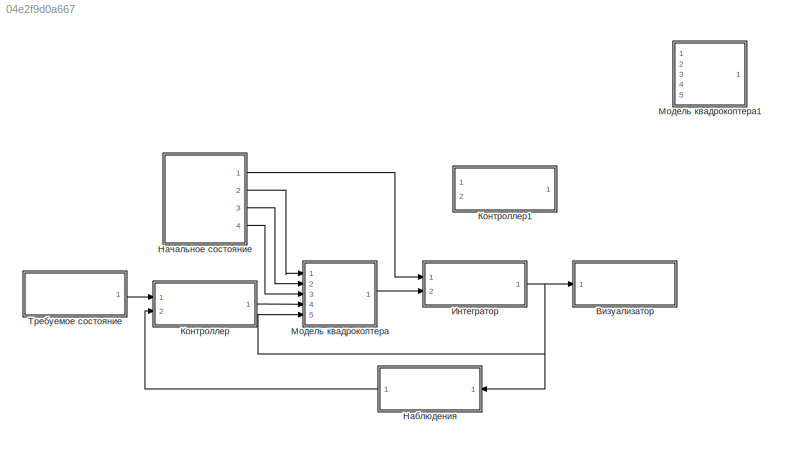
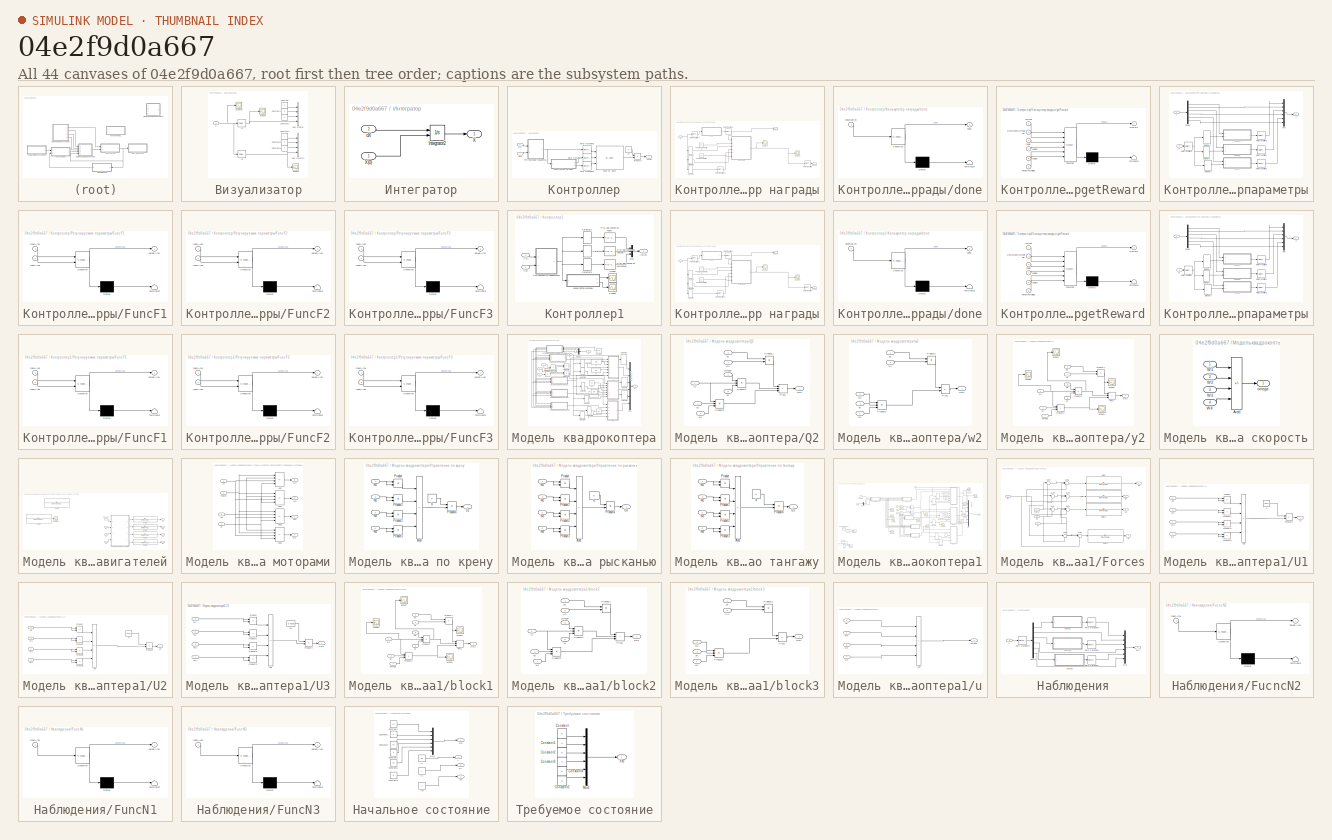
[diagram: thumbnail index - all 44 canvases of the model, root first then tree order]
MODEL slx_04e2f9d0a667
KIND model
CONFIG AbsTol = auto
CONFIG EnableMultiTasking = off
CONFIG FixedStep = 0.01
CONFIG MaxStep = auto
CONFIG MinStep = auto
CONFIG RelTol = 1e-3
CONFIG SampleTimeConstraint = Unconstrained
CONFIG Solver = FixedStepAuto
CONFIG SolverName = FixedStepAuto
CONFIG StartTime = 0.0
CONFIG StopTime = 0.1
BLOCK [SubSystem] Визуализатор
  Ports = [1]
  RequestExecContextInheritance = off
BLOCK [BusCreator] Визуализатор/Bus Creator
  DisplayOption = bar
  InheritFromInputs = on
  Inputs = 4
  Ports = [4, 1]
BLOCK [BusCreator] Визуализатор/Bus Creator2
  DisplayOption = bar
  InheritFromInputs = on
  Inputs = 4
  Ports = [4, 1]
BLOCK [Constant] Визуализатор/Constant
  Value = 0
BLOCK [Constant] Визуализатор/Constant1
  Value = 0
BLOCK [Constant] Визуализатор/Constant2
BLOCK [Constant] Визуализатор/Constant4
BLOCK [Constant] Визуализатор/Constant5
  Value = 0
BLOCK [Constant] Визуализатор/Constant6
  Value = 0
BLOCK [Scope] Визуализатор/Scope1
  Floating = off
  NumInputPorts = 1
  Ports = [1]
  ScopeSpecificationString = Simulink.scopes.TimeScopeBlockCfg('CurrentConfiguration', extmgr.ConfigurationSet(extmgr.Configuration('Core','General UI',true,'FigureColor',[1 1 1]),extmgr.Configuration('Core','Source UI',true),extmgr.Configuration('Sources','WiredSimulink',true),extmgr.Configuration('Visuals','Time Domain',true,'SerializedDisplays',{struct('MinYLimReal','-9.46621','MaxYLimReal','2.16291','YLabelReal','','MinYL...<+1511ch>
BLOCK [Scope] Визуализатор/Scope10
  Floating = off
  NumInputPorts = 1
  Ports = [1]
  ScopeSpecificationString = Simulink.scopes.TimeScopeBlockCfg('CurrentConfiguration', extmgr.ConfigurationSet(extmgr.Configuration('Core','General UI',true,'FigureColor',[1 1 1]),extmgr.Configuration('Core','Source UI',true),extmgr.Configuration('Sources','WiredSimulink',true,'DataLoggingVariableName','ScopeData1'),extmgr.Configuration('Visuals','Time Domain',true,'SerializedDisplays',{struct('MinYLimReal','-4.13982','MaxYLi...<+2084ch>
BLOCK [Scope] Визуализатор/Scope4
  Floating = off
  NumInputPorts = 1
  Ports = [1]
  ScopeSpecificationString = Simulink.scopes.TimeScopeBlockCfg('CurrentConfiguration', extmgr.ConfigurationSet(extmgr.Configuration('Core','General UI',true,'FigureColor',[1 1 1]),extmgr.Configuration('Core','Source UI',true),extmgr.Configuration('Sources','WiredSimulink',true,'DataLoggingVariableName','ScopeData9'),extmgr.Configuration('Visuals','Time Domain',true,'SerializedDisplays',{struct('MinYLimReal','-0.12511','MaxYLi...<+1548ch>
BLOCK [Inport] Визуализатор/X
BLOCK [Selector] Визуализатор/X1
  IndexOptions = Index vector (dialog)
  Indices = [1]
  InputPortWidth = 6
  OutputSizes = 1
  Ports = [1, 1]
BLOCK [Selector] Визуализатор/X3
  IndexOptions = Index vector (dialog)
  Indices = [3]
  InputPortWidth = 6
  OutputSizes = 1
  Ports = [1, 1]
BLOCK [SubSystem] Интегратор
  Ports = [2, 1]
  RequestExecContextInheritance = off
BLOCK [Integrator] Интегратор/Integrator2
  InitialConditionSource = external
  Ports = [2, 1]
BLOCK [Outport] Интегратор/X
BLOCK [Inport] Интегратор/X(0)
BLOCK [Inport] Интегратор/dX
  Port = 2
BLOCK [SubSystem] Контроллер
  Ports = [2, 1]
  RequestExecContextInheritance = off
BLOCK [Outport] Контроллер/Action
BLOCK [Product] Контроллер/Product2
  Ports = [2, 1]
BLOCK [RateTransition] Контроллер/Rate Transition1
BLOCK [RateTransition] Контроллер/Rate Transition2
BLOCK [RateTransition] Контроллер/Rate Transition5
BLOCK [Inport] Контроллер/Xтр
BLOCK [Inport] Контроллер/Y(t)
  Port = 2
BLOCK [Constant] Контроллер/s1
  Value = 8
BLOCK [Reference] Контроллер/Блок RL Agent  REF=rllib/RL Agent
  Ports = [3, 1]
  SourceBlock = rllib/RL Agent
  SourceProductBaseCode = RL
  SourceType = RL Agent
BLOCK [SubSystem] Контроллер/Калькулятор награды
  Ports = [1, 2]
  RequestExecContextInheritance = off
BLOCK [Outport] Контроллер/Калькулятор награды/IsDone
  Port = 2
BLOCK [Constant] Контроллер/Калькулятор награды/PenaltyForFalling
  Value = -20
BLOCK [Constant] Контроллер/Калькулятор награды/PenaltyForNotFalling
  Value = 32
BLOCK [RateTransition] Контроллер/Калькулятор награды/Rate Transition
BLOCK [RateTransition] Контроллер/Калькулятор награды/Rate Transition1
BLOCK [RateTransition] Контроллер/Калькулятор награды/Rate Transition2
BLOCK [RateTransition] Контроллер/Калькулятор награды/Rate Transition3
BLOCK [Outport] Контроллер/Калькулятор награды/Reward
BLOCK [Scope] Контроллер/Калькулятор награды/Scope1
  Floating = off
  NumInputPorts = 1
  Ports = [1]
  ScopeSpecificationString = Simulink.scopes.TimeScopeBlockCfg('CurrentConfiguration', extmgr.ConfigurationSet(extmgr.Configuration('Core','General UI',true,'FigureColor',[1 1 1]),extmgr.Configuration('Core','Source UI',true),extmgr.Configuration('Sources','WiredSimulink',true,'DataLoggingVariableName','ScopeData1'),extmgr.Configuration('Visuals','Time Domain',true,'SerializedDisplays',{struct('MinYLimReal','-40.84703','MaxYL...<+1567ch>
BLOCK [Scope] Контроллер/Калькулятор награды/Scope4
  Floating = off
  NumInputPorts = 1
  Ports = [1]
  ScopeSpecificationString = Simulink.scopes.TimeScopeBlockCfg('CurrentConfiguration', extmgr.ConfigurationSet(extmgr.Configuration('Core','General UI',true,'FigureColor',[1 1 1]),extmgr.Configuration('Core','Source UI',true),extmgr.Configuration('Sources','WiredSimulink',true,'DataLoggingVariableName','ScopeData5'),extmgr.Configuration('Visuals','Time Domain',true,'SerializedDisplays',{struct('MinYLimReal','-40.84703','MaxYL...<+1567ch>
BLOCK [Selector] Контроллер/Калькулятор награды/Selector1
  IndexOptions = Index vector (dialog)
  Indices = [1]
  InputPortWidth = 6
  OutputSizes = 1
  Ports = [1, 1]
BLOCK [Selector] Контроллер/Калькулятор награды/Selector2
  IndexOptions = Index vector (dialog)
  Indices = [5]
  InputPortWidth = 6
  OutputSizes = 1
  Ports = [1, 1]
BLOCK [Selector] Контроллер/Калькулятор награды/Selector3
  IndexOptions = Index vector (dialog)
  Indices = [3]
  InputPortWidth = 6
  OutputSizes = 1
  Ports = [1, 1]
BLOCK [Inport] Контроллер/Калькулятор награды/X
BLOCK [SubSystem] Контроллер/Калькулятор награды/done
  ErrorFcn = Stateflow.Translate.translate
  PermitHierarchicalResolution = ExplicitOnly
  Ports = [1, 1]
  RequestExecContextInheritance = off
  SFBlockType = MATLAB Function
  TreatAsAtomicUnit = on
BLOCK [Demux] Контроллер/Калькулятор награды/done/ Demux 
  Outputs = 1
  Ports = [1, 1]
BLOCK [S-Function] Контроллер/Калькулятор награды/done/ SFunction 
  EnableBusSupport = on
  FunctionName = sf_sfun
  PortCounts = [1 2]
  Ports = [1, 2]
  SFcnIsStateOwnerBlock = off
  SFunctionDeploymentMode = off
  Tag = Stateflow S-Function 9
BLOCK [Terminator] Контроллер/Калькулятор награды/done/ Terminator 
BLOCK [Outport] Контроллер/Калькулятор награды/done/done
BLOCK [Inport] Контроллер/Калькулятор награды/done/observation
BLOCK [SubSystem] Контроллер/Калькулятор награды/getReward
  ErrorFcn = Stateflow.Translate.translate
  PermitHierarchicalResolution = ExplicitOnly
  Ports = [6, 1]
  RequestExecContextInheritance = off
  SFBlockType = MATLAB Function
  TreatAsAtomicUnit = on
BLOCK [Demux] Контроллер/Калькулятор награды/getReward/ Demux 
  Outputs = 1
  Ports = [1, 1]
BLOCK [S-Function] Контроллер/Калькулятор награды/getReward/ SFunction 
  EnableBusSupport = on
  FunctionName = sf_sfun
  PortCounts = [6 2]
  Ports = [6, 2]
  SFcnIsStateOwnerBlock = off
  SFunctionDeploymentMode = off
  Tag = Stateflow S-Function 11
BLOCK [Terminator] Контроллер/Калькулятор награды/getReward/ Terminator 
BLOCK [Inport] Контроллер/Калькулятор награды/getReward/IsDone
BLOCK [Inport] Контроллер/Калькулятор награды/getReward/PenaltyForFalling
  Port = 6
BLOCK [Outport] Контроллер/Калькулятор награды/getReward/Reward
BLOCK [Inport] Контроллер/Калькулятор награды/getReward/RewardForNotFalling
  Port = 2
BLOCK [Inport] Контроллер/Калькулятор награды/getReward/angle
  Port = 3
BLOCK [Inport] Контроллер/Калькулятор награды/getReward/angle2
  Port = 4
BLOCK [Inport] Контроллер/Калькулятор награды/getReward/angle3
  Port = 5
BLOCK [SubSystem] Контроллер/Регулируемые параметры
  Ports = [2, 1]
  RequestExecContextInheritance = off
BLOCK [Demux] Контроллер/Регулируемые параметры/Demux
  Outputs = 6
  Ports = [1, 6]
BLOCK [SubSystem] Контроллер/Регулируемые параметры/FuncF1
  ErrorFcn = Stateflow.Translate.translate
  PermitHierarchicalResolution = ExplicitOnly
  Ports = [2, 1]
  RequestExecContextInheritance = off
  SFBlockType = MATLAB Function
  TreatAsAtomicUnit = on
BLOCK [Demux] Контроллер/Регулируемые параметры/FuncF1/ Demux 
  Outputs = 1
  Ports = [1, 1]
BLOCK [S-Function] Контроллер/Регулируемые параметры/FuncF1/ SFunction 
  EnableBusSupport = on
  FunctionName = sf_sfun
  PortCounts = [2 2]
  Ports = [2, 2]
  SFcnIsStateOwnerBlock = off
  SFunctionDeploymentMode = off
  Tag = Stateflow S-Function 1
BLOCK [Terminator] Контроллер/Регулируемые параметры/FuncF1/ Terminator 
BLOCK [Inport] Контроллер/Регулируемые параметры/FuncF1/inputArg1
BLOCK [Inport] Контроллер/Регулируемые параметры/FuncF1/inputArg2
  Port = 2
BLOCK [Outport] Контроллер/Регулируемые параметры/FuncF1/outputArg1
BLOCK [SubSystem] Контроллер/Регулируемые параметры/FuncF2
  ErrorFcn = Stateflow.Translate.translate
  PermitHierarchicalResolution = ExplicitOnly
  Ports = [2, 1]
  RequestExecContextInheritance = off
  SFBlockType = MATLAB Function
  TreatAsAtomicUnit = on
BLOCK [Demux] Контроллер/Регулируемые параметры/FuncF2/ Demux 
  Outputs = 1
  Ports = [1, 1]
BLOCK [S-Function] Контроллер/Регулируемые параметры/FuncF2/ SFunction 
  EnableBusSupport = on
  FunctionName = sf_sfun
  PortCounts = [2 2]
  Ports = [2, 2]
  SFcnIsStateOwnerBlock = off
  SFunctionDeploymentMode = off
  Tag = Stateflow S-Function 2
BLOCK [Terminator] Контроллер/Регулируемые параметры/FuncF2/ Terminator 
BLOCK [Inport] Контроллер/Регулируемые параметры/FuncF2/inputArg1
BLOCK [Inport] Контроллер/Регулируемые параметры/FuncF2/inputArg2
  Port = 2
BLOCK [Outport] Контроллер/Регулируемые параметры/FuncF2/outputArg1
BLOCK [SubSystem] Контроллер/Регулируемые параметры/FuncF3
  ErrorFcn = Stateflow.Translate.translate
  PermitHierarchicalResolution = ExplicitOnly
  Ports = [2, 1]
  RequestExecContextInheritance = off
  SFBlockType = MATLAB Function
  TreatAsAtomicUnit = on
BLOCK [Demux] Контроллер/Регулируемые параметры/FuncF3/ Demux 
  Outputs = 1
  Ports = [1, 1]
BLOCK [S-Function] Контроллер/Регулируемые параметры/FuncF3/ SFunction 
  EnableBusSupport = on
  FunctionName = sf_sfun
  PortCounts = [2 2]
  Ports = [2, 2]
  SFcnIsStateOwnerBlock = off
  SFunctionDeploymentMode = off
  Tag = Stateflow S-Function 10
BLOCK [Terminator] Контроллер/Регулируемые параметры/FuncF3/ Terminator 
BLOCK [Inport] Контроллер/Регулируемые параметры/FuncF3/inputArg1
BLOCK [Inport] Контроллер/Регулируемые параметры/FuncF3/inputArg2
  Port = 2
BLOCK [Outport] Контроллер/Регулируемые параметры/FuncF3/outputArg1
BLOCK [Mux] Контроллер/Регулируемые параметры/Mux
  DisplayOption = bar
  Inputs = 6
  Ports = [6, 1]
BLOCK [RateTransition] Контроллер/Регулируемые параметры/Rate Transition1
BLOCK [RateTransition] Контроллер/Регулируемые параметры/Rate Transition2
BLOCK [RateTransition] Контроллер/Регулируемые параметры/Rate Transition3
BLOCK [RateTransition] Контроллер/Регулируемые параметры/Rate Transition5
BLOCK [Selector] Контроллер/Регулируемые параметры/Selector1
  IndexOptions = Index vector (dialog)
  Indices = [1]
  InputPortWidth = 6
  OutputSizes = 1
  Ports = [1, 1]
BLOCK [Selector] Контроллер/Регулируемые параметры/Selector2
  IndexOptions = Index vector (dialog)
  Indices = [3]
  InputPortWidth = 6
  OutputSizes = 1
  Ports = [1, 1]
BLOCK [Selector] Контроллер/Регулируемые параметры/Selector3
  IndexOptions = Index vector (dialog)
  Indices = [5]
  InputPortWidth = 6
  OutputSizes = 1
  Ports = [1, 1]
BLOCK [Inport] Контроллер/Регулируемые параметры/XT
  Port = 2
BLOCK [Inport] Контроллер/Регулируемые параметры/Y
BLOCK [Outport] Контроллер/Регулируемые параметры/Z
BLOCK [SubSystem] Контроллер1
  Ports = [2, 1]
  RequestExecContextInheritance = off
BLOCK [Outport] Контроллер1/Action
BLOCK [Mux] Контроллер1/Mux
  DisplayOption = bar
  Inputs = 3
  Ports = [3, 1]
BLOCK [Reference] Контроллер1/PID-регулятор по крену  REF=simulink/Continuous/PID Controller
  Ports = [1, 1]
  SourceBlock = simulink/Continuous/PID Controller
  SourceProductBaseCode = SL
  SourceType = PID 1dof
BLOCK [Reference] Контроллер1/PID-регулятор по рысканью  REF=simulink/Continuous/PID Controller
  Ports = [1, 1]
  SourceBlock = simulink/Continuous/PID Controller
  SourceProductBaseCode = SL
  SourceType = PID 1dof
BLOCK [Reference] Контроллер1/PID-регулятор по тангажу  REF=simulink/Continuous/PID Controller
  Ports = [1, 1]
  SourceBlock = simulink/Continuous/PID Controller
  SourceProductBaseCode = SL
  SourceType = PID 1dof
BLOCK [Scope] Контроллер1/Scope
  Floating = off
  NumInputPorts = 1
  Ports = [1]
  ScopeSpecificationString = Simulink.scopes.TimeScopeBlockCfg('CurrentConfiguration', extmgr.ConfigurationSet(extmgr.Configuration('Core','General UI',true),extmgr.Configuration('Core','Source UI',true),extmgr.Configuration('Sources','WiredSimulink',true,'DataLoggingVariableName','ScopeData1'),extmgr.Configuration('Visuals','Time Domain',true),extmgr.Configuration('Tools','Plot Navigation',true),extmgr.Configuration('Tools',...<+40ch>
BLOCK [Scope] Контроллер1/Scope1
  Floating = off
  NumInputPorts = 1
  Ports = [1]
  ScopeSpecificationString = Simulink.scopes.TimeScopeBlockCfg('CurrentConfiguration', extmgr.ConfigurationSet(extmgr.Configuration('Core','General UI',true),extmgr.Configuration('Core','Source UI',true),extmgr.Configuration('Sources','WiredSimulink',true,'DataLoggingVariableName','ScopeData2'),extmgr.Configuration('Visuals','Time Domain',true),extmgr.Configuration('Tools','Plot Navigation',true),extmgr.Configuration('Tools',...<+40ch>
BLOCK [Selector] Контроллер1/Selector1
  IndexOptions = Index vector (dialog)
  Indices = [1]
  InputPortWidth = 6
  OutputSizes = 1
  Ports = [1, 1]
BLOCK [Selector] Контроллер1/Selector2
  IndexOptions = Index vector (dialog)
  Indices = [3]
  InputPortWidth = 6
  OutputSizes = 1
  Ports = [1, 1]
BLOCK [Selector] Контроллер1/Selector3
  IndexOptions = Index vector (dialog)
  Indices = [5]
  InputPortWidth = 6
  OutputSizes = 1
  Ports = [1, 1]
BLOCK [Inport] Контроллер1/Xтр
BLOCK [Inport] Контроллер1/Y(t)
  Port = 2
BLOCK [SubSystem] Контроллер1/Калькулятор награды
  Ports = [1, 2]
  RequestExecContextInheritance = off
BLOCK [Outport] Контроллер1/Калькулятор награды/IsDone
  Port = 2
BLOCK [Constant] Контроллер1/Калькулятор награды/PenaltyForFalling
  Value = -20
BLOCK [Constant] Контроллер1/Калькулятор награды/PenaltyForNotFalling
  Value = 32
BLOCK [RateTransition] Контроллер1/Калькулятор награды/Rate Transition
BLOCK [RateTransition] Контроллер1/Калькулятор награды/Rate Transition1
BLOCK [RateTransition] Контроллер1/Калькулятор награды/Rate Transition2
BLOCK [RateTransition] Контроллер1/Калькулятор награды/Rate Transition3
BLOCK [Outport] Контроллер1/Калькулятор награды/Reward
BLOCK [Scope] Контроллер1/Калькулятор награды/Scope1
  Floating = off
  NumInputPorts = 1
  Ports = [1]
  ScopeSpecificationString = Simulink.scopes.TimeScopeBlockCfg('CurrentConfiguration', extmgr.ConfigurationSet(extmgr.Configuration('Core','General UI',true,'FigureColor',[1 1 1]),extmgr.Configuration('Core','Source UI',true),extmgr.Configuration('Sources','WiredSimulink',true,'DataLoggingVariableName','ScopeData1'),extmgr.Configuration('Visuals','Time Domain',true,'SerializedDisplays',{struct('MinYLimReal','-40.84703','MaxYL...<+1567ch>
BLOCK [Scope] Контроллер1/Калькулятор награды/Scope4
  Floating = off
  NumInputPorts = 1
  Ports = [1]
  ScopeSpecificationString = Simulink.scopes.TimeScopeBlockCfg('CurrentConfiguration', extmgr.ConfigurationSet(extmgr.Configuration('Core','General UI',true,'FigureColor',[1 1 1]),extmgr.Configuration('Core','Source UI',true),extmgr.Configuration('Sources','WiredSimulink',true,'DataLoggingVariableName','ScopeData5'),extmgr.Configuration('Visuals','Time Domain',true,'SerializedDisplays',{struct('MinYLimReal','-40.84703','MaxYL...<+1567ch>
BLOCK [Selector] Контроллер1/Калькулятор награды/Selector1
  IndexOptions = Index vector (dialog)
  Indices = [1]
  InputPortWidth = 6
  OutputSizes = 1
  Ports = [1, 1]
BLOCK [Selector] Контроллер1/Калькулятор награды/Selector2
  IndexOptions = Index vector (dialog)
  Indices = [5]
  InputPortWidth = 6
  OutputSizes = 1
  Ports = [1, 1]
BLOCK [Selector] Контроллер1/Калькулятор награды/Selector3
  IndexOptions = Index vector (dialog)
  Indices = [3]
  InputPortWidth = 6
  OutputSizes = 1
  Ports = [1, 1]
BLOCK [Inport] Контроллер1/Калькулятор награды/X
BLOCK [SubSystem] Контроллер1/Калькулятор награды/done
  ErrorFcn = Stateflow.Translate.translate
  PermitHierarchicalResolution = ExplicitOnly
  Ports = [1, 1]
  RequestExecContextInheritance = off
  SFBlockType = MATLAB Function
  TreatAsAtomicUnit = on
BLOCK [Demux] Контроллер1/Калькулятор награды/done/ Demux 
  Outputs = 1
  Ports = [1, 1]
BLOCK [S-Function] Контроллер1/Калькулятор награды/done/ SFunction 
  EnableBusSupport = on
  FunctionName = sf_sfun
  PortCounts = [1 2]
  Ports = [1, 2]
  SFcnIsStateOwnerBlock = off
  SFunctionDeploymentMode = off
  Tag = Stateflow S-Function 3
BLOCK [Terminator] Контроллер1/Калькулятор награды/done/ Terminator 
BLOCK [Outport] Контроллер1/Калькулятор награды/done/done
BLOCK [Inport] Контроллер1/Калькулятор награды/done/observation
BLOCK [SubSystem] Контроллер1/Калькулятор награды/getReward
  ErrorFcn = Stateflow.Translate.translate
  PermitHierarchicalResolution = ExplicitOnly
  Ports = [6, 1]
  RequestExecContextInheritance = off
  SFBlockType = MATLAB Function
  TreatAsAtomicUnit = on
BLOCK [Demux] Контроллер1/Калькулятор награды/getReward/ Demux 
  Outputs = 1
  Ports = [1, 1]
BLOCK [S-Function] Контроллер1/Калькулятор награды/getReward/ SFunction 
  EnableBusSupport = on
  FunctionName = sf_sfun
  PortCounts = [6 2]
  Ports = [6, 2]
  SFcnIsStateOwnerBlock = off
  SFunctionDeploymentMode = off
  Tag = Stateflow S-Function 4
BLOCK [Terminator] Контроллер1/Калькулятор награды/getReward/ Terminator 
BLOCK [Inport] Контроллер1/Калькулятор награды/getReward/IsDone
BLOCK [Inport] Контроллер1/Калькулятор награды/getReward/PenaltyForFalling
  Port = 6
BLOCK [Outport] Контроллер1/Калькулятор награды/getReward/Reward
BLOCK [Inport] Контроллер1/Калькулятор награды/getReward/RewardForNotFalling
  Port = 2
BLOCK [Inport] Контроллер1/Калькулятор награды/getReward/angle
  Port = 3
BLOCK [Inport] Контроллер1/Калькулятор награды/getReward/angle2
  Port = 4
BLOCK [Inport] Контроллер1/Калькулятор награды/getReward/angle3
  Port = 5
BLOCK [SubSystem] Контроллер1/Регулируемые параметры
  Ports = [2, 1]
  RequestExecContextInheritance = off
BLOCK [Demux] Контроллер1/Регулируемые параметры/Demux
  Outputs = 6
  Ports = [1, 6]
BLOCK [SubSystem] Контроллер1/Регулируемые параметры/FuncF1
  ErrorFcn = Stateflow.Translate.translate
  PermitHierarchicalResolution = ExplicitOnly
  Ports = [2, 1]
  RequestExecContextInheritance = off
  SFBlockType = MATLAB Function
  TreatAsAtomicUnit = on
BLOCK [Demux] Контроллер1/Регулируемые параметры/FuncF1/ Demux 
  Outputs = 1
  Ports = [1, 1]
BLOCK [S-Function] Контроллер1/Регулируемые параметры/FuncF1/ SFunction 
  EnableBusSupport = on
  FunctionName = sf_sfun
  PortCounts = [2 2]
  Ports = [2, 2]
  SFcnIsStateOwnerBlock = off
  SFunctionDeploymentMode = off
  Tag = Stateflow S-Function 7
BLOCK [Terminator] Контроллер1/Регулируемые параметры/FuncF1/ Terminator 
BLOCK [Inport] Контроллер1/Регулируемые параметры/FuncF1/inputArg1
BLOCK [Inport] Контроллер1/Регулируемые параметры/FuncF1/inputArg2
  Port = 2
BLOCK [Outport] Контроллер1/Регулируемые параметры/FuncF1/outputArg1
BLOCK [SubSystem] Контроллер1/Регулируемые параметры/FuncF2
  ErrorFcn = Stateflow.Translate.translate
  PermitHierarchicalResolution = ExplicitOnly
  Ports = [2, 1]
  RequestExecContextInheritance = off
  SFBlockType = MATLAB Function
  TreatAsAtomicUnit = on
BLOCK [Demux] Контроллер1/Регулируемые параметры/FuncF2/ Demux 
  Outputs = 1
  Ports = [1, 1]
BLOCK [S-Function] Контроллер1/Регулируемые параметры/FuncF2/ SFunction 
  EnableBusSupport = on
  FunctionName = sf_sfun
  PortCounts = [2 2]
  Ports = [2, 2]
  SFcnIsStateOwnerBlock = off
  SFunctionDeploymentMode = off
  Tag = Stateflow S-Function 12
BLOCK [Terminator] Контроллер1/Регулируемые параметры/FuncF2/ Terminator 
BLOCK [Inport] Контроллер1/Регулируемые параметры/FuncF2/inputArg1
BLOCK [Inport] Контроллер1/Регулируемые параметры/FuncF2/inputArg2
  Port = 2
BLOCK [Outport] Контроллер1/Регулируемые параметры/FuncF2/outputArg1
BLOCK [SubSystem] Контроллер1/Регулируемые параметры/FuncF3
  ErrorFcn = Stateflow.Translate.translate
  PermitHierarchicalResolution = ExplicitOnly
  Ports = [2, 1]
  RequestExecContextInheritance = off
  SFBlockType = MATLAB Function
  TreatAsAtomicUnit = on
BLOCK [Demux] Контроллер1/Регулируемые параметры/FuncF3/ Demux 
  Outputs = 1
  Ports = [1, 1]
BLOCK [S-Function] Контроллер1/Регулируемые параметры/FuncF3/ SFunction 
  EnableBusSupport = on
  FunctionName = sf_sfun
  PortCounts = [2 2]
  Ports = [2, 2]
  SFcnIsStateOwnerBlock = off
  SFunctionDeploymentMode = off
  Tag = Stateflow S-Function 13
BLOCK [Terminator] Контроллер1/Регулируемые параметры/FuncF3/ Terminator 
BLOCK [Inport] Контроллер1/Регулируемые параметры/FuncF3/inputArg1
BLOCK [Inport] Контроллер1/Регулируемые параметры/FuncF3/inputArg2
  Port = 2
BLOCK [Outport] Контроллер1/Регулируемые параметры/FuncF3/outputArg1
BLOCK [Mux] Контроллер1/Регулируемые параметры/Mux
  DisplayOption = bar
  Inputs = 6
  Ports = [6, 1]
BLOCK [RateTransition] Контроллер1/Регулируемые параметры/Rate Transition1
BLOCK [RateTransition] Контроллер1/Регулируемые параметры/Rate Transition2
BLOCK [RateTransition] Контроллер1/Регулируемые параметры/Rate Transition3
BLOCK [RateTransition] Контроллер1/Регулируемые параметры/Rate Transition5
BLOCK [Selector] Контроллер1/Регулируемые параметры/Selector1
  IndexOptions = Index vector (dialog)
  Indices = [1]
  InputPortWidth = 6
  OutputSizes = 1
  Ports = [1, 1]
BLOCK [Selector] Контроллер1/Регулируемые параметры/Selector2
  IndexOptions = Index vector (dialog)
  Indices = [3]
  InputPortWidth = 6
  OutputSizes = 1
  Ports = [1, 1]
BLOCK [Selector] Контроллер1/Регулируемые параметры/Selector3
  IndexOptions = Index vector (dialog)
  Indices = [5]
  InputPortWidth = 6
  OutputSizes = 1
  Ports = [1, 1]
BLOCK [Inport] Контроллер1/Регулируемые параметры/XT
  Port = 2
BLOCK [Inport] Контроллер1/Регулируемые параметры/Y
BLOCK [Outport] Контроллер1/Регулируемые параметры/Z
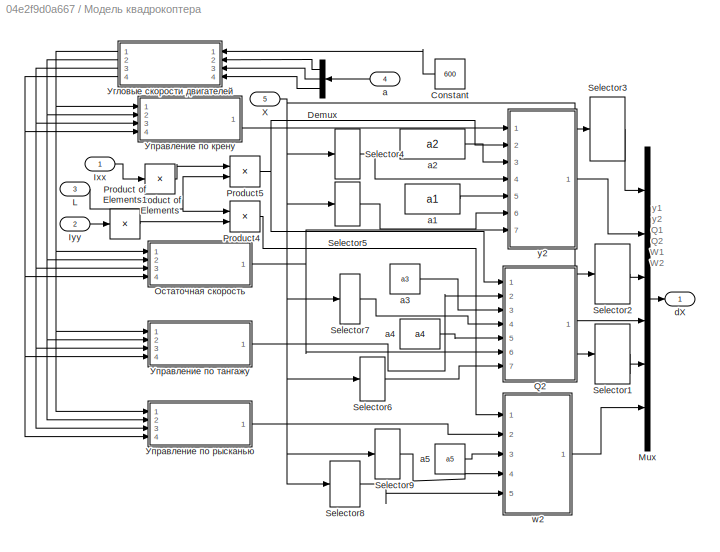
BLOCK [SubSystem] Модель квадрокоптера
  Ports = [5, 1]
  RequestExecContextInheritance = off
BLOCK [Constant] Модель квадрокоптера/Constant
  Value = 600
BLOCK [Demux] Модель квадрокоптера/Demux
  Outputs = 3
  Ports = [1, 3]
BLOCK [Inport] Модель квадрокоптера/Ixx
BLOCK [Inport] Модель квадрокоптера/Iyy
  Port = 2
BLOCK [Inport] Модель квадрокоптера/L
  Port = 3
BLOCK [Mux] Модель квадрокоптера/Mux
  DisplayOption = bar
  Inputs = 6
  Ports = [6, 1]
BLOCK [Product] Модель квадрокоптера/Product of Elements
  Inputs = /
  Ports = [1, 1]
BLOCK [Product] Модель квадрокоптера/Product of Elements1
  Inputs = /
  Ports = [1, 1]
BLOCK [Product] Модель квадрокоптера/Product4
  Ports = [2, 1]
BLOCK [Product] Модель квадрокоптера/Product5
  Ports = [2, 1]
BLOCK [SubSystem] Модель квадрокоптера/Q2
  Ports = [7, 1]
  RequestExecContextInheritance = off
BLOCK [Inport] Модель квадрокоптера/Q2/Omega
  Port = 6
BLOCK [Outport] Модель квадрокоптера/Q2/Out1
BLOCK [Sum] Модель квадрокоптера/Q2/Plus1
  IconShape = rectangular
  Inputs = +++
  Ports = [3, 1]
BLOCK [Product] Модель квадрокоптера/Q2/Product1
  Ports = [2, 1]
BLOCK [Product] Модель квадрокоптера/Q2/Product2
  Inputs = 3
  Ports = [3, 1]
BLOCK [Product] Модель квадрокоптера/Q2/Product3
  Inputs = 3
  Ports = [3, 1]
BLOCK [Inport] Модель квадрокоптера/Q2/U3
  Port = 2
BLOCK [Inport] Модель квадрокоптера/Q2/a3
  Port = 3
BLOCK [Inport] Модель квадрокоптера/Q2/a4
  Port = 5
BLOCK [Inport] Модель квадрокоптера/Q2/b2
BLOCK [Inport] Модель квадрокоптера/Q2/w2
  Port = 7
BLOCK [Inport] Модель квадрокоптера/Q2/y2
  Port = 4
BLOCK [Selector] Модель квадрокоптера/Selector1
  IndexOptions = Index vector (dialog)
  Indices = [6]
  InputPortWidth = 6
  OutputSizes = 1
  Ports = [1, 1]
BLOCK [Selector] Модель квадрокоптера/Selector2
  IndexOptions = Index vector (dialog)
  Indices = [4]
  InputPortWidth = 6
  OutputSizes = 1
  Ports = [1, 1]
BLOCK [Selector] Модель квадрокоптера/Selector3
  IndexOptions = Index vector (dialog)
  Indices = [2]
  InputPortWidth = 6
  OutputSizes = 1
  Ports = [1, 1]
BLOCK [Selector] Модель квадрокоптера/Selector4
  IndexOptions = Index vector (dialog)
  Indices = [4]
  InputPortWidth = 6
  OutputSizes = 1
  Ports = [1, 1]
BLOCK [Selector] Модель квадрокоптера/Selector5
  IndexOptions = Index vector (dialog)
  Indices = [6]
  InputPortWidth = 6
  OutputSizes = 1
  Ports = [1, 1]
BLOCK [Selector] Модель квадрокоптера/Selector6
  IndexOptions = Index vector (dialog)
  Indices = [6]
  InputPortWidth = 6
  OutputSizes = 1
  Ports = [1, 1]
BLOCK [Selector] Модель квадрокоптера/Selector7
  IndexOptions = Index vector (dialog)
  Indices = [2]
  InputPortWidth = 6
  OutputSizes = 1
  Ports = [1, 1]
BLOCK [Selector] Модель квадрокоптера/Selector8
  IndexOptions = Index vector (dialog)
  Indices = [4]
  InputPortWidth = 6
  OutputSizes = 1
  Ports = [1, 1]
BLOCK [Selector] Модель квадрокоптера/Selector9
  IndexOptions = Index vector (dialog)
  Indices = [6]
  InputPortWidth = 6
  OutputSizes = 1
  Ports = [1, 1]
BLOCK [Inport] Модель квадрокоптера/X
  Port = 5
BLOCK [Inport] Модель квадрокоптера/a
  Port = 4
BLOCK [Constant] Модель квадрокоптера/a1
  Value = a1
BLOCK [Constant] Модель квадрокоптера/a2
  Value = a2
BLOCK [Constant] Модель квадрокоптера/a3
  Value = a3
BLOCK [Constant] Модель квадрокоптера/a4
  Value = a4
BLOCK [Constant] Модель квадрокоптера/a5
  Value = a5
BLOCK [Outport] Модель квадрокоптера/dX
BLOCK [SubSystem] Модель квадрокоптера/w2
  Ports = [5, 1]
  RequestExecContextInheritance = off
BLOCK [Outport] Модель квадрокоптера/w2/Out1
BLOCK [Sum] Модель квадрокоптера/w2/Plus1
  IconShape = rectangular
  Inputs = -+
  Ports = [2, 1]
BLOCK [Product] Модель квадрокоптера/w2/Product1
  Ports = [2, 1]
BLOCK [Product] Модель квадрокоптера/w2/Product3
  Inputs = 3
  Ports = [3, 1]
BLOCK [Inport] Модель квадрокоптера/w2/Q2
  Port = 5
BLOCK [Inport] Модель квадрокоптера/w2/U4
  Port = 2
BLOCK [Inport] Модель квадрокоптера/w2/a5
  Port = 3
BLOCK [Inport] Модель квадрокоптера/w2/b3
BLOCK [Inport] Модель квадрокоптера/w2/w2
  Port = 4
BLOCK [SubSystem] Модель квадрокоптера/y2
  Ports = [7, 1]
  RequestExecContextInheritance = off
BLOCK [Outport] Модель квадрокоптера/y2/Out1
BLOCK [Sum] Модель квадрокоптера/y2/Plus1
  IconShape = rectangular
  Inputs = +++
  Ports = [3, 1]
BLOCK [Product] Модель квадрокоптера/y2/Product1
  Ports = [2, 1]
BLOCK [Product] Модель квадрокоптера/y2/Product2
  Inputs = 3
  Ports = [3, 1]
BLOCK [Product] Модель квадрокоптера/y2/Product3
  Inputs = 3
  Ports = [3, 1]
BLOCK [Inport] Модель квадрокоптера/y2/Q2
  Port = 4
BLOCK [Scope] Модель квадрокоптера/y2/Scope1
  Floating = off
  NumInputPorts = 1
  Ports = [1]
  ScopeSpecificationString = Simulink.scopes.TimeScopeBlockCfg('CurrentConfiguration', extmgr.ConfigurationSet(extmgr.Configuration('Core','General UI',true,'FigureColor',[1 1 1]),extmgr.Configuration('Core','Source UI',true),extmgr.Configuration('Sources','WiredSimulink',true,'DataLoggingVariableName','ScopeData12'),extmgr.Configuration('Visuals','Time Domain',true,'SerializedDisplays',{struct('MinYLimReal','-10.78347','MaxY...<+1580ch>
BLOCK [Scope] Модель квадрокоптера/y2/Scope2
  Floating = off
  NumInputPorts = 1
  Ports = [1]
  ScopeSpecificationString = Simulink.scopes.TimeScopeBlockCfg('CurrentConfiguration', extmgr.ConfigurationSet(extmgr.Configuration('Core','General UI',true,'FigureColor',[1 1 1]),extmgr.Configuration('Core','Source UI',true),extmgr.Configuration('Sources','WiredSimulink',true,'DataLoggingVariableName','ScopeData13'),extmgr.Configuration('Visuals','Time Domain',true,'SerializedDisplays',{struct('MinYLimReal','-10.78347','MaxY...<+1582ch>
BLOCK [Scope] Модель квадрокоптера/y2/Scope3
  Floating = off
  NumInputPorts = 1
  Ports = [1]
  ScopeSpecificationString = Simulink.scopes.TimeScopeBlockCfg('CurrentConfiguration', extmgr.ConfigurationSet(extmgr.Configuration('Core','General UI',true,'FigureColor',[1 1 1]),extmgr.Configuration('Core','Source UI',true),extmgr.Configuration('Sources','WiredSimulink',true,'DataLoggingVariableName','ScopeData1'),extmgr.Configuration('Visuals','Time Domain',true,'SerializedDisplays',{struct('MinYLimReal','-10.78347','MaxYL...<+1575ch>
BLOCK [Scope] Модель квадрокоптера/y2/Scope7
  Floating = off
  NumInputPorts = 1
  Ports = [1]
  ScopeSpecificationString = Simulink.scopes.TimeScopeBlockCfg('CurrentConfiguration', extmgr.ConfigurationSet(extmgr.Configuration('Core','General UI',true,'FigureColor',[1 1 1]),extmgr.Configuration('Core','Source UI',true),extmgr.Configuration('Sources','WiredSimulink',true,'DataLoggingVariableName','ScopeData11'),extmgr.Configuration('Visuals','Time Domain',true,'SerializedDisplays',{struct('MinYLimReal','-0.47754','MaxYL...<+1574ch>
BLOCK [Inport] Модель квадрокоптера/y2/U2
BLOCK [Inport] Модель квадрокоптера/y2/a1
  Port = 5
BLOCK [Inport] Модель квадрокоптера/y2/a2
  Port = 3
BLOCK [Inport] Модель квадрокоптера/y2/b1
  Port = 2
BLOCK [Inport] Модель квадрокоптера/y2/omega
  Port = 7
BLOCK [Inport] Модель квадрокоптера/y2/w2
  Port = 6
BLOCK [SubSystem] Модель квадрокоптера/Остаточная скорость
  Ports = [4, 1]
  RequestExecContextInheritance = off
BLOCK [Sum] Модель квадрокоптера/Остаточная скорость/Add
  IconShape = rectangular
  Inputs = +--+
  Ports = [4, 1]
BLOCK [Inport] Модель квадрокоптера/Остаточная скорость/W1
BLOCK [Inport] Модель квадрокоптера/Остаточная скорость/W2
  Port = 2
BLOCK [Inport] Модель квадрокоптера/Остаточная скорость/W3
  Port = 3
BLOCK [Inport] Модель квадрокоптера/Остаточная скорость/W4
  Port = 4
BLOCK [Outport] Модель квадрокоптера/Остаточная скорость/omega
BLOCK [SubSystem] Модель квадрокоптера/Угловые скорости двигателей
  Ports = [4, 4]
  RequestExecContextInheritance = off
BLOCK [Inport] Модель квадрокоптера/Угловые скорости двигателей/FConst
BLOCK [Inport] Модель квадрокоптера/Угловые скорости двигателей/Fp
  Port = 3
BLOCK [Inport] Модель квадрокоптера/Угловые скорости двигателей/Fr
  Port = 2
BLOCK [Inport] Модель квадрокоптера/Угловые скорости двигателей/Fy
  Port = 4
BLOCK [TransferFcn] Модель квадрокоптера/Угловые скорости двигателей/Rotor1
  Denominator = [Tm*Te Tm 1]
BLOCK [TransferFcn] Модель квадрокоптера/Угловые скорости двигателей/Rotor2
  Denominator = [Tm*Te Tm 1]
BLOCK [TransferFcn] Модель квадрокоптера/Угловые скорости двигателей/Rotor3
  Denominator = [Tm*Te Tm 1]
BLOCK [TransferFcn] Модель квадрокоптера/Угловые скорости двигателей/Rotor4
  Denominator = [Tm*Te Tm 1]
BLOCK [TransferFcn] Модель квадрокоптера/Угловые скорости двигателей/Rotor5
  Denominator = [0.0003 0.025 1]
BLOCK [TransferFcn] Модель квадрокоптера/Угловые скорости двигателей/Rotor6
  Denominator = [0.00003 0.005 1]
BLOCK [Scope] Модель квадрокоптера/Угловые скорости двигателей/Scope5
  Floating = off
  NumInputPorts = 1
  Ports = [1]
  ScopeSpecificationString = Simulink.scopes.TimeScopeBlockCfg('CurrentConfiguration', extmgr.ConfigurationSet(extmgr.Configuration('Core','General UI',true,'FigureColor',[1 1 1]),extmgr.Configuration('Core','Source UI',true),extmgr.Configuration('Sources','WiredSimulink',true,'DataLoggingVariableName','ScopeData5'),extmgr.Configuration('Visuals','Time Domain',true,'SerializedDisplays',{struct('MinYLimReal','565.65739','MaxYL...<+1587ch>
BLOCK [Outport] Модель квадрокоптера/Угловые скорости двигателей/W1
BLOCK [Outport] Модель квадрокоптера/Угловые скорости двигателей/W2
  Port = 2
BLOCK [Outport] Модель квадрокоптера/Угловые скорости двигателей/W3
  Port = 3
BLOCK [Outport] Модель квадрокоптера/Угловые скорости двигателей/W4
  Port = 4
BLOCK [SubSystem] Модель квадрокоптера/Угловые скорости двигателей/Управление моторами
  Ports = [4, 4]
  RequestExecContextInheritance = off
BLOCK [Sum] Модель квадрокоптера/Угловые скорости двигателей/Управление моторами/Add
  IconShape = rectangular
  Inputs = +++-
  Ports = [4, 1]
BLOCK [Sum] Модель квадрокоптера/Угловые скорости двигателей/Управление моторами/Add1
  IconShape = rectangular
  Inputs = +-++
  Ports = [4, 1]
BLOCK [Sum] Модель квадрокоптера/Угловые скорости двигателей/Управление моторами/Add2
  IconShape = rectangular
  Inputs = +---
  Ports = [4, 1]
BLOCK [Sum] Модель квадрокоптера/Угловые скорости двигателей/Управление моторами/Add3
  IconShape = rectangular
  Inputs = ++-+
  Ports = [4, 1]
BLOCK [Inport] Модель квадрокоптера/Угловые скорости двигателей/Управление моторами/FConst
BLOCK [Inport] Модель квадрокоптера/Угловые скорости двигателей/Управление моторами/Fp
  Port = 3
BLOCK [Inport] Модель квадрокоптера/Угловые скорости двигателей/Управление моторами/Fr
  Port = 2
BLOCK [Inport] Модель квадрокоптера/Угловые скорости двигателей/Управление моторами/Fy
  Port = 4
BLOCK [Outport] Модель квадрокоптера/Угловые скорости двигателей/Управление моторами/W1
BLOCK [Outport] Модель квадрокоптера/Угловые скорости двигателей/Управление моторами/W2
  Port = 2
BLOCK [Outport] Модель квадрокоптера/Угловые скорости двигателей/Управление моторами/W3
  Port = 3
BLOCK [Outport] Модель квадрокоптера/Угловые скорости двигателей/Управление моторами/W4
  Port = 4
BLOCK [SubSystem] Модель квадрокоптера/Управление по крену
  Ports = [4, 1]
  RequestExecContextInheritance = off
BLOCK [Sum] Модель квадрокоптера/Управление по крену/Add
  IconShape = rectangular
  Inputs = +-+-
  Ports = [4, 1]
BLOCK [Product] Модель квадрокоптера/Управление по крену/Product
  Ports = [2, 1]
BLOCK [Product] Модель квадрокоптера/Управление по крену/Product1
  Ports = [2, 1]
BLOCK [Product] Модель квадрокоптера/Управление по крену/Product2
  Ports = [2, 1]
BLOCK [Product] Модель квадрокоптера/Управление по крену/Product3
  Ports = [2, 1]
BLOCK [Product] Модель квадрокоптера/Управление по крену/Product4
  Ports = [2, 1]
BLOCK [Outport] Модель квадрокоптера/Управление по крену/U2
BLOCK [Inport] Модель квадрокоптера/Управление по крену/W1
BLOCK [Inport] Модель квадрокоптера/Управление по крену/W2
  Port = 2
BLOCK [Inport] Модель квадрокоптера/Управление по крену/W3
  Port = 3
BLOCK [Inport] Модель квадрокоптера/Управление по крену/W4
  Port = 4
BLOCK [Constant] Модель квадрокоптера/Управление по крену/b
  Value = b
BLOCK [SubSystem] Модель квадрокоптера/Управление по рысканью
  Ports = [4, 1]
  RequestExecContextInheritance = off
BLOCK [Sum] Модель квадрокоптера/Управление по рысканью/Add
  IconShape = rectangular
  Inputs = -++-
  Ports = [4, 1]
BLOCK [Product] Модель квадрокоптера/Управление по рысканью/Product
  Ports = [2, 1]
BLOCK [Product] Модель квадрокоптера/Управление по рысканью/Product1
  Ports = [2, 1]
BLOCK [Product] Модель квадрокоптера/Управление по рысканью/Product2
  Ports = [2, 1]
BLOCK [Product] Модель квадрокоптера/Управление по рысканью/Product3
  Ports = [2, 1]
BLOCK [Product] Модель квадрокоптера/Управление по рысканью/Product4
  Ports = [2, 1]
BLOCK [Outport] Модель квадрокоптера/Управление по рысканью/U4
BLOCK [Inport] Модель квадрокоптера/Управление по рысканью/W1
BLOCK [Inport] Модель квадрокоптера/Управление по рысканью/W2
  Port = 2
BLOCK [Inport] Модель квадрокоптера/Управление по рысканью/W3
  Port = 3
BLOCK [Inport] Модель квадрокоптера/Управление по рысканью/W4
  Port = 4
BLOCK [Constant] Модель квадрокоптера/Управление по рысканью/d
  Value = d
BLOCK [SubSystem] Модель квадрокоптера/Управление по тангажу
  Ports = [4, 1]
  RequestExecContextInheritance = off
BLOCK [Sum] Модель квадрокоптера/Управление по тангажу/Add
  IconShape = rectangular
  Inputs = ++--
  Ports = [4, 1]
BLOCK [Product] Модель квадрокоптера/Управление по тангажу/Product
  Ports = [2, 1]
BLOCK [Product] Модель квадрокоптера/Управление по тангажу/Product1
  Ports = [2, 1]
BLOCK [Product] Модель квадрокоптера/Управление по тангажу/Product2
  Ports = [2, 1]
BLOCK [Product] Модель квадрокоптера/Управление по тангажу/Product3
  Ports = [2, 1]
BLOCK [Product] Модель квадрокоптера/Управление по тангажу/Product4
  Ports = [2, 1]
BLOCK [Outport] Модель квадрокоптера/Управление по тангажу/U3
BLOCK [Inport] Модель квадрокоптера/Управление по тангажу/W1
BLOCK [Inport] Модель квадрокоптера/Управление по тангажу/W2
  Port = 2
BLOCK [Inport] Модель квадрокоптера/Управление по тангажу/W3
  Port = 3
BLOCK [Inport] Модель квадрокоптера/Управление по тангажу/W4
  Port = 4
BLOCK [Constant] Модель квадрокоптера/Управление по тангажу/b
  Value = b
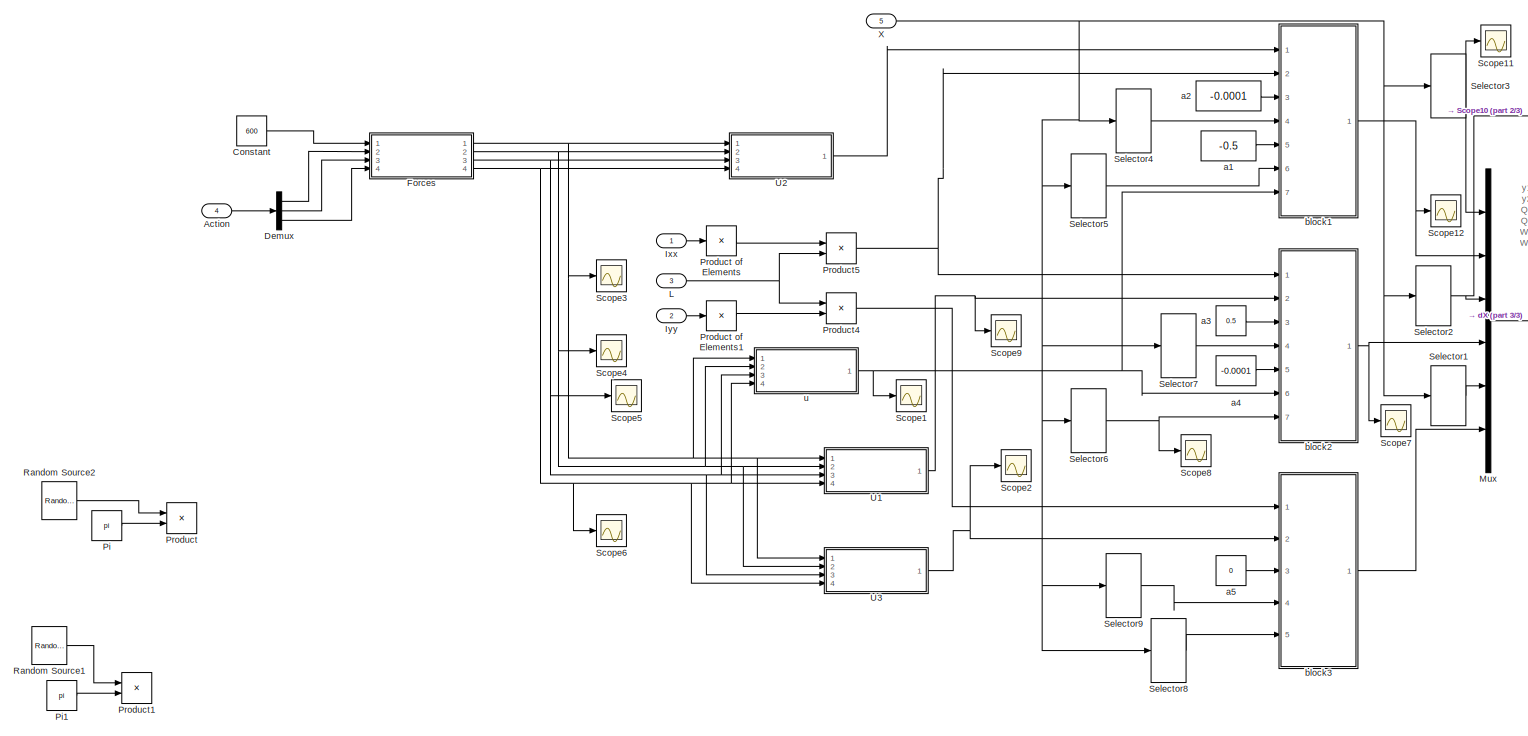
[diagram: Модель квадрокоптера1 - part 1/3, most of the canvas]
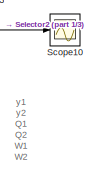
[diagram: Модель квадрокоптера1 - part 2/3, top right region]
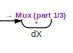
[diagram: Модель квадрокоптера1 - part 3/3, middle right region]
BLOCK [SubSystem] Модель квадрокоптера1
  Ports = [5, 1]
  RequestExecContextInheritance = off
BLOCK [Inport] Модель квадрокоптера1/Action
  Port = 4
BLOCK [Constant] Модель квадрокоптера1/Constant
  Value = 600
BLOCK [Demux] Модель квадрокоптера1/Demux
  Outputs = 3
  Ports = [1, 3]
BLOCK [SubSystem] Модель квадрокоптера1/Forces
  Ports = [4, 4]
  RequestExecContextInheritance = off
BLOCK [Inport] Модель квадрокоптера1/Forces/FConst
BLOCK [Inport] Модель квадрокоптера1/Forces/Fp
  Port = 3
BLOCK [Inport] Модель квадрокоптера1/Forces/Fr
  Port = 2
BLOCK [Inport] Модель квадрокоптера1/Forces/Fy
  Port = 4
BLOCK [TransferFcn] Модель квадрокоптера1/Forces/Rotor
  Denominator = [Tm*Te Tm 1]
BLOCK [TransferFcn] Модель квадрокоптера1/Forces/Rotor1
  Denominator = [Tm*Te Tm 1]
BLOCK [TransferFcn] Модель квадрокоптера1/Forces/Rotor2
  Denominator = [Tm*Te Tm 1]
BLOCK [TransferFcn] Модель квадрокоптера1/Forces/Rotor3
  Denominator = [Tm*Te Tm 1]
BLOCK [Sum] Модель квадрокоптера1/Forces/Sum
  Inputs = |+-
  Ports = [2, 1]
BLOCK [Sum] Модель квадрокоптера1/Forces/Sum1
  Inputs = |+--
  Ports = [3, 1]
BLOCK [Sum] Модель квадрокоптера1/Forces/Sum2
  Inputs = |+-
  Ports = [2, 1]
BLOCK [Sum] Модель квадрокоптера1/Forces/Sum3
  Inputs = |+++
  Ports = [3, 1]
BLOCK [Sum] Модель квадрокоптера1/Forces/Sum4
  Inputs = |++
  Ports = [2, 1]
BLOCK [Sum] Модель квадрокоптера1/Forces/Sum5
  Inputs = |+-+
  Ports = [3, 1]
BLOCK [Sum] Модель квадрокоптера1/Forces/Sum6
  Inputs = |++
  Ports = [2, 1]
BLOCK [Sum] Модель квадрокоптера1/Forces/Sum7
  Inputs = |++-
  NameLocation = top
  Ports = [3, 1]
BLOCK [Outport] Модель квадрокоптера1/Forces/W1
BLOCK [Outport] Модель квадрокоптера1/Forces/W2
  Port = 2
BLOCK [Outport] Модель квадрокоптера1/Forces/W3
  Port = 3
BLOCK [Outport] Модель квадрокоптера1/Forces/W4
  Port = 4
BLOCK [Inport] Модель квадрокоптера1/Ixx
BLOCK [Inport] Модель квадрокоптера1/Iyy
  Port = 2
BLOCK [Inport] Модель квадрокоптера1/L
  Port = 3
BLOCK [Mux] Модель квадрокоптера1/Mux
  DisplayOption = bar
  Inputs = 6
  Ports = [6, 1]
BLOCK [Constant] Модель квадрокоптера1/Pi
  OutDataTypeStr = Inherit: Inherit via back propagation
  Value = pi
BLOCK [Constant] Модель квадрокоптера1/Pi1
  OutDataTypeStr = Inherit: Inherit via back propagation
  Value = pi
BLOCK [Product] Модель квадрокоптера1/Product
  Ports = [2, 1]
BLOCK [Product] Модель квадрокоптера1/Product of Elements
  Inputs = /
  Ports = [1, 1]
BLOCK [Product] Модель квадрокоптера1/Product of Elements1
  Inputs = /
  Ports = [1, 1]
BLOCK [Product] Модель квадрокоптера1/Product1
  Ports = [2, 1]
BLOCK [Product] Модель квадрокоптера1/Product4
  Ports = [2, 1]
BLOCK [Product] Модель квадрокоптера1/Product5
  Ports = [2, 1]
BLOCK [Reference] Модель квадрокоптера1/Random Source1  REF=dspsrcs4/Random
Source
  Ports = [0, 1]
  SourceBlock = dspsrcs4/Random\nSource
  SourceProductBaseCode = DS
  SourceType = Random Source
  UserDataPersistent = on
BLOCK [Reference] Модель квадрокоптера1/Random Source2  REF=dspsrcs4/Random
Source
  Ports = [0, 1]
  SourceBlock = dspsrcs4/Random\nSource
  SourceProductBaseCode = DS
  SourceType = Random Source
  UserDataPersistent = on
BLOCK [Scope] Модель квадрокоптера1/Scope1
  Floating = off
  NumInputPorts = 1
  Ports = [1]
  ScopeSpecificationString = Simulink.scopes.TimeScopeBlockCfg('CurrentConfiguration', extmgr.ConfigurationSet(extmgr.Configuration('Core','General UI',true,'FigureColor',[1 1 1]),extmgr.Configuration('Core','Source UI',true),extmgr.Configuration('Sources','WiredSimulink',true,'DataLoggingVariableName','ScopeData1'),extmgr.Configuration('Visuals','Time Domain',true,'SerializedDisplays',{struct('MinYLimReal','-10.78347','MaxYL...<+1572ch>
BLOCK [Scope] Модель квадрокоптера1/Scope10
  Floating = off
  NumInputPorts = 1
  Ports = [1]
  ScopeSpecificationString = Simulink.scopes.TimeScopeBlockCfg('CurrentConfiguration', extmgr.ConfigurationSet(extmgr.Configuration('Core','General UI',true,'FigureColor',[1 1 1]),extmgr.Configuration('Core','Source UI',true),extmgr.Configuration('Sources','WiredSimulink',true,'DataLoggingVariableName','ScopeData18'),extmgr.Configuration('Visuals','Time Domain',true,'SerializedDisplays',{struct('MinYLimReal','-0.28739','MaxYL...<+1576ch>
BLOCK [Scope] Модель квадрокоптера1/Scope11
  Floating = off
  NumInputPorts = 1
  Ports = [1]
  ScopeSpecificationString = Simulink.scopes.TimeScopeBlockCfg('CurrentConfiguration', extmgr.ConfigurationSet(extmgr.Configuration('Core','General UI',true,'FigureColor',[1 1 1]),extmgr.Configuration('Core','Source UI',true),extmgr.Configuration('Sources','WiredSimulink',true,'DataLoggingVariableName','ScopeData19'),extmgr.Configuration('Visuals','Time Domain',true,'SerializedDisplays',{struct('MinYLimReal','-27.69429','MaxY...<+1582ch>
BLOCK [Scope] Модель квадрокоптера1/Scope12
  Floating = off
  NumInputPorts = 1
  Ports = [1]
  ScopeSpecificationString = Simulink.scopes.TimeScopeBlockCfg('CurrentConfiguration', extmgr.ConfigurationSet(extmgr.Configuration('Core','General UI',true,'FigureColor',[1 1 1]),extmgr.Configuration('Core','Source UI',true),extmgr.Configuration('Sources','WiredSimulink',true,'DataLoggingVariableName','ScopeData2'),extmgr.Configuration('Visuals','Time Domain',true,'SerializedDisplays',{struct('MinYLimReal','-10.78347','MaxYL...<+1579ch>
BLOCK [Scope] Модель квадрокоптера1/Scope2
  Floating = off
  NumInputPorts = 1
  Ports = [1]
  ScopeSpecificationString = Simulink.scopes.TimeScopeBlockCfg('CurrentConfiguration', extmgr.ConfigurationSet(extmgr.Configuration('Core','General UI',true,'FigureColor',[1 1 1]),extmgr.Configuration('Core','Source UI',true),extmgr.Configuration('Sources','WiredSimulink',true,'DataLoggingVariableName','ScopeData7'),extmgr.Configuration('Visuals','Time Domain',true,'SerializedDisplays',{struct('MinYLimReal','-10.78347','MaxYL...<+1573ch>
BLOCK [Scope] Модель квадрокоптера1/Scope3
  Floating = off
  NumInputPorts = 1
  Ports = [1]
  ScopeSpecificationString = Simulink.scopes.TimeScopeBlockCfg('CurrentConfiguration', extmgr.ConfigurationSet(extmgr.Configuration('Core','General UI',true,'FigureColor',[1 1 1]),extmgr.Configuration('Core','Source UI',true),extmgr.Configuration('Sources','WiredSimulink',true,'DataLoggingVariableName','ScopeData1'),extmgr.Configuration('Visuals','Time Domain',true,'SerializedDisplays',{struct('MinYLimReal','992.92722','MaxYL...<+1591ch>
BLOCK [Scope] Модель квадрокоптера1/Scope4
  Floating = off
  NumInputPorts = 1
  Ports = [1]
  ScopeSpecificationString = Simulink.scopes.TimeScopeBlockCfg('CurrentConfiguration', extmgr.ConfigurationSet(extmgr.Configuration('Core','General UI',true,'FigureColor',[1 1 1]),extmgr.Configuration('Core','Source UI',true),extmgr.Configuration('Sources','WiredSimulink',true,'DataLoggingVariableName','ScopeData8'),extmgr.Configuration('Visuals','Time Domain',true,'SerializedDisplays',{struct('MinYLimReal','992.92722','MaxYL...<+1591ch>
BLOCK [Scope] Модель квадрокоптера1/Scope5
  Floating = off
  NumInputPorts = 1
  Ports = [1]
  ScopeSpecificationString = Simulink.scopes.TimeScopeBlockCfg('CurrentConfiguration', extmgr.ConfigurationSet(extmgr.Configuration('Core','General UI',true,'FigureColor',[1 1 1]),extmgr.Configuration('Core','Source UI',true),extmgr.Configuration('Sources','WiredSimulink',true,'DataLoggingVariableName','ScopeData9'),extmgr.Configuration('Visuals','Time Domain',true,'SerializedDisplays',{struct('MinYLimReal','992.92722','MaxYL...<+1591ch>
BLOCK [Scope] Модель квадрокоптера1/Scope6
  Floating = off
  NumInputPorts = 1
  Ports = [1]
  ScopeSpecificationString = Simulink.scopes.TimeScopeBlockCfg('CurrentConfiguration', extmgr.ConfigurationSet(extmgr.Configuration('Core','General UI',true,'FigureColor',[1 1 1]),extmgr.Configuration('Core','Source UI',true),extmgr.Configuration('Sources','WiredSimulink',true,'DataLoggingVariableName','ScopeData10'),extmgr.Configuration('Visuals','Time Domain',true,'SerializedDisplays',{struct('MinYLimReal','992.92722','MaxY...<+1592ch>
BLOCK [Scope] Модель квадрокоптера1/Scope7
  Floating = off
  NumInputPorts = 1
  Ports = [1]
  ScopeSpecificationString = Simulink.scopes.TimeScopeBlockCfg('CurrentConfiguration', extmgr.ConfigurationSet(extmgr.Configuration('Core','General UI',true,'FigureColor',[1 1 1]),extmgr.Configuration('Core','Source UI',true),extmgr.Configuration('Sources','WiredSimulink',true,'DataLoggingVariableName','ScopeData15'),extmgr.Configuration('Visuals','Time Domain',true,'SerializedDisplays',{struct('MinYLimReal','-10.78347','MaxY...<+1579ch>
BLOCK [Scope] Модель квадрокоптера1/Scope8
  Floating = off
  NumInputPorts = 1
  Ports = [1]
  ScopeSpecificationString = Simulink.scopes.TimeScopeBlockCfg('CurrentConfiguration', extmgr.ConfigurationSet(extmgr.Configuration('Core','General UI',true,'FigureColor',[1 1 1]),extmgr.Configuration('Core','Source UI',true),extmgr.Configuration('Sources','WiredSimulink',true,'DataLoggingVariableName','ScopeData16'),extmgr.Configuration('Visuals','Time Domain',true,'SerializedDisplays',{struct('MinYLimReal','-10.78347','MaxY...<+1582ch>
BLOCK [Scope] Модель квадрокоптера1/Scope9
  Floating = off
  NumInputPorts = 1
  Ports = [1]
  ScopeSpecificationString = Simulink.scopes.TimeScopeBlockCfg('CurrentConfiguration', extmgr.ConfigurationSet(extmgr.Configuration('Core','General UI',true,'FigureColor',[1 1 1]),extmgr.Configuration('Core','Source UI',true),extmgr.Configuration('Sources','WiredSimulink',true,'DataLoggingVariableName','ScopeData17'),extmgr.Configuration('Visuals','Time Domain',true,'SerializedDisplays',{struct('MinYLimReal','-12.10891','MaxY...<+1572ch>
BLOCK [Selector] Модель квадрокоптера1/Selector1
  IndexOptions = Index vector (dialog)
  Indices = [6]
  InputPortWidth = 6
  OutputSizes = 1
  Ports = [1, 1]
BLOCK [Selector] Модель квадрокоптера1/Selector2
  IndexOptions = Index vector (dialog)
  Indices = [4]
  InputPortWidth = 6
  OutputSizes = 1
  Ports = [1, 1]
BLOCK [Selector] Модель квадрокоптера1/Selector3
  IndexOptions = Index vector (dialog)
  Indices = [2]
  InputPortWidth = 6
  OutputSizes = 1
  Ports = [1, 1]
BLOCK [Selector] Модель квадрокоптера1/Selector4
  IndexOptions = Index vector (dialog)
  Indices = [4]
  InputPortWidth = 6
  OutputSizes = 1
  Ports = [1, 1]
BLOCK [Selector] Модель квадрокоптера1/Selector5
  IndexOptions = Index vector (dialog)
  Indices = [6]
  InputPortWidth = 6
  OutputSizes = 1
  Ports = [1, 1]
BLOCK [Selector] Модель квадрокоптера1/Selector6
  IndexOptions = Index vector (dialog)
  Indices = [6]
  InputPortWidth = 6
  OutputSizes = 1
  Ports = [1, 1]
BLOCK [Selector] Модель квадрокоптера1/Selector7
  IndexOptions = Index vector (dialog)
  Indices = [2]
  InputPortWidth = 6
  OutputSizes = 1
  Ports = [1, 1]
BLOCK [Selector] Модель квадрокоптера1/Selector8
  IndexOptions = Index vector (dialog)
  Indices = [4]
  InputPortWidth = 6
  OutputSizes = 1
  Ports = [1, 1]
BLOCK [Selector] Модель квадрокоптера1/Selector9
  IndexOptions = Index vector (dialog)
  Indices = [6]
  InputPortWidth = 6
  OutputSizes = 1
  Ports = [1, 1]
BLOCK [SubSystem] Модель квадрокоптера1/U1
  Ports = [4, 1]
  RequestExecContextInheritance = off
BLOCK [Sum] Модель квадрокоптера1/U1/Add
  IconShape = rectangular
  Inputs = ++--
  Ports = [4, 1]
BLOCK [Product] Модель квадрокоптера1/U1/Product
  Ports = [2, 1]
BLOCK [Product] Модель квадрокоптера1/U1/Product1
  Ports = [2, 1]
BLOCK [Product] Модель квадрокоптера1/U1/Product2
  Ports = [2, 1]
BLOCK [Product] Модель квадрокоптера1/U1/Product3
  Ports = [2, 1]
BLOCK [Product] Модель квадрокоптера1/U1/Product4
  Ports = [2, 1]
BLOCK [Outport] Модель квадрокоптера1/U1/U1
BLOCK [Inport] Модель квадрокоптера1/U1/W2
  Port = 2
BLOCK [Inport] Модель квадрокоптера1/U1/W3
  Port = 3
BLOCK [Inport] Модель квадрокоптера1/U1/W4
  Port = 4
BLOCK [Constant] Модель квадрокоптера1/U1/b
  Value = 0.001
BLOCK [Inport] Модель квадрокоптера1/U1/w1
BLOCK [SubSystem] Модель квадрокоптера1/U2
  Ports = [4, 1]
  RequestExecContextInheritance = off
BLOCK [Sum] Модель квадрокоптера1/U2/Add
  IconShape = rectangular
  Inputs = +-+-
  Ports = [4, 1]
BLOCK [Product] Модель квадрокоптера1/U2/Product
  Ports = [2, 1]
BLOCK [Product] Модель квадрокоптера1/U2/Product1
  Ports = [2, 1]
BLOCK [Product] Модель квадрокоптера1/U2/Product2
  Ports = [2, 1]
BLOCK [Product] Модель квадрокоптера1/U2/Product3
  Ports = [2, 1]
BLOCK [Product] Модель квадрокоптера1/U2/Product4
  Ports = [2, 1]
BLOCK [Outport] Модель квадрокоптера1/U2/U3
BLOCK [Inport] Модель квадрокоптера1/U2/W2
  Port = 2
BLOCK [Inport] Модель квадрокоптера1/U2/W3
  Port = 3
BLOCK [Inport] Модель квадрокоптера1/U2/W4
  Port = 4
BLOCK [Constant] Модель квадрокоптера1/U2/b
  Value = 0.001
BLOCK [Inport] Модель квадрокоптера1/U2/w1
BLOCK [SubSystem] Модель квадрокоптера1/U3
  Ports = [4, 1]
  RequestExecContextInheritance = off
BLOCK [Sum] Модель квадрокоптера1/U3/Add
  IconShape = rectangular
  Inputs = -++-
  Ports = [4, 1]
BLOCK [Outport] Модель квадрокоптера1/U3/Out1
BLOCK [Product] Модель квадрокоптера1/U3/Product
  Ports = [2, 1]
BLOCK [Product] Модель квадрокоптера1/U3/Product1
  Ports = [2, 1]
BLOCK [Product] Модель квадрокоптера1/U3/Product2
  Ports = [2, 1]
BLOCK [Product] Модель квадрокоптера1/U3/Product3
  Ports = [2, 1]
BLOCK [Product] Модель квадрокоптера1/U3/Product4
  Ports = [2, 1]
BLOCK [Inport] Модель квадрокоптера1/U3/W2
  Port = 2
BLOCK [Inport] Модель квадрокоптера1/U3/W3
  Port = 3
BLOCK [Inport] Модель квадрокоптера1/U3/W4
  Port = 4
BLOCK [Constant] Модель квадрокоптера1/U3/b1
  Value = 0.0008
BLOCK [Inport] Модель квадрокоптера1/U3/w1
BLOCK [Inport] Модель квадрокоптера1/X
  Port = 5
BLOCK [Constant] Модель квадрокоптера1/a1
  Value = -0.5
BLOCK [Constant] Модель квадрокоптера1/a2
  Value = -0.0001
BLOCK [Constant] Модель квадрокоптера1/a3
  Value = 0.5
BLOCK [Constant] Модель квадрокоптера1/a4
  Value = -0.0001
BLOCK [Constant] Модель квадрокоптера1/a5
  Value = 0
BLOCK [SubSystem] Модель квадрокоптера1/block1
  Ports = [7, 1]
  RequestExecContextInheritance = off
BLOCK [Outport] Модель квадрокоптера1/block1/Out1
BLOCK [Sum] Модель квадрокоптера1/block1/Plus1
  IconShape = rectangular
  Inputs = +++
  Ports = [3, 1]
BLOCK [Product] Модель квадрокоптера1/block1/Product1
  Ports = [2, 1]
BLOCK [Product] Модель квадрокоптера1/block1/Product2
  Inputs = 3
  Ports = [3, 1]
BLOCK [Product] Модель квадрокоптера1/block1/Product3
  Inputs = 3
  Ports = [3, 1]
BLOCK [Inport] Модель квадрокоптера1/block1/Q2
  Port = 4
BLOCK [Scope] Модель квадрокоптера1/block1/Scope1
  Floating = off
  NumInputPorts = 1
  Ports = [1]
  ScopeSpecificationString = Simulink.scopes.TimeScopeBlockCfg('CurrentConfiguration', extmgr.ConfigurationSet(extmgr.Configuration('Core','General UI',true,'FigureColor',[1 1 1]),extmgr.Configuration('Core','Source UI',true),extmgr.Configuration('Sources','WiredSimulink',true,'DataLoggingVariableName','ScopeData12'),extmgr.Configuration('Visuals','Time Domain',true,'SerializedDisplays',{struct('MinYLimReal','-10.78347','MaxY...<+1580ch>
BLOCK [Scope] Модель квадрокоптера1/block1/Scope2
  Floating = off
  NumInputPorts = 1
  Ports = [1]
  ScopeSpecificationString = Simulink.scopes.TimeScopeBlockCfg('CurrentConfiguration', extmgr.ConfigurationSet(extmgr.Configuration('Core','General UI',true,'FigureColor',[1 1 1]),extmgr.Configuration('Core','Source UI',true),extmgr.Configuration('Sources','WiredSimulink',true,'DataLoggingVariableName','ScopeData13'),extmgr.Configuration('Visuals','Time Domain',true,'SerializedDisplays',{struct('MinYLimReal','-10.78347','MaxY...<+1582ch>
BLOCK [Scope] Модель квадрокоптера1/block1/Scope3
  Floating = off
  NumInputPorts = 1
  Ports = [1]
  ScopeSpecificationString = Simulink.scopes.TimeScopeBlockCfg('CurrentConfiguration', extmgr.ConfigurationSet(extmgr.Configuration('Core','General UI',true,'FigureColor',[1 1 1]),extmgr.Configuration('Core','Source UI',true),extmgr.Configuration('Sources','WiredSimulink',true,'DataLoggingVariableName','ScopeData1'),extmgr.Configuration('Visuals','Time Domain',true,'SerializedDisplays',{struct('MinYLimReal','-10.78347','MaxYL...<+1575ch>
BLOCK [Scope] Модель квадрокоптера1/block1/Scope7
  Floating = off
  NumInputPorts = 1
  Ports = [1]
  ScopeSpecificationString = Simulink.scopes.TimeScopeBlockCfg('CurrentConfiguration', extmgr.ConfigurationSet(extmgr.Configuration('Core','General UI',true,'FigureColor',[1 1 1]),extmgr.Configuration('Core','Source UI',true),extmgr.Configuration('Sources','WiredSimulink',true,'DataLoggingVariableName','ScopeData11'),extmgr.Configuration('Visuals','Time Domain',true,'SerializedDisplays',{struct('MinYLimReal','-0.47754','MaxYL...<+1574ch>
BLOCK [Inport] Модель квадрокоптера1/block1/U1
BLOCK [Inport] Модель квадрокоптера1/block1/a1
  Port = 5
BLOCK [Inport] Модель квадрокоптера1/block1/a2
  Port = 3
BLOCK [Inport] Модель квадрокоптера1/block1/b1
  Port = 2
BLOCK [Inport] Модель квадрокоптера1/block1/omega
  Port = 7
BLOCK [Inport] Модель квадрокоптера1/block1/w2
  Port = 6
BLOCK [SubSystem] Модель квадрокоптера1/block2
  Ports = [7, 1]
  RequestExecContextInheritance = off
BLOCK [Inport] Модель квадрокоптера1/block2/Omega
  Port = 6
BLOCK [Outport] Модель квадрокоптера1/block2/Out1
BLOCK [Sum] Модель квадрокоптера1/block2/Plus1
  IconShape = rectangular
  Inputs = +++
  Ports = [3, 1]
BLOCK [Product] Модель квадрокоптера1/block2/Product1
  Ports = [2, 1]
BLOCK [Product] Модель квадрокоптера1/block2/Product2
  Inputs = 3
  Ports = [3, 1]
BLOCK [Product] Модель квадрокоптера1/block2/Product3
  Inputs = 3
  Ports = [3, 1]
BLOCK [Inport] Модель квадрокоптера1/block2/U3
  Port = 2
BLOCK [Inport] Модель квадрокоптера1/block2/a3
  Port = 3
BLOCK [Inport] Модель квадрокоптера1/block2/a4
  Port = 5
BLOCK [Inport] Модель квадрокоптера1/block2/b2
BLOCK [Inport] Модель квадрокоптера1/block2/w2
  Port = 7
BLOCK [Inport] Модель квадрокоптера1/block2/y2
  Port = 4
BLOCK [SubSystem] Модель квадрокоптера1/block3
  Ports = [5, 1]
  RequestExecContextInheritance = off
BLOCK [Outport] Модель квадрокоптера1/block3/Out1
BLOCK [Sum] Модель квадрокоптера1/block3/Plus1
  IconShape = rectangular
  Inputs = -+
  Ports = [2, 1]
BLOCK [Product] Модель квадрокоптера1/block3/Product1
  Ports = [2, 1]
BLOCK [Product] Модель квадрокоптера1/block3/Product3
  Inputs = 3
  Ports = [3, 1]
BLOCK [Inport] Модель квадрокоптера1/block3/Q2
  Port = 5
BLOCK [Inport] Модель квадрокоптера1/block3/U4
  Port = 2
BLOCK [Inport] Модель квадрокоптера1/block3/a5
  Port = 3
BLOCK [Inport] Модель квадрокоптера1/block3/b3
BLOCK [Inport] Модель квадрокоптера1/block3/w2
  Port = 4
BLOCK [Outport] Модель квадрокоптера1/dX
BLOCK [SubSystem] Модель квадрокоптера1/u
  Ports = [4, 1]
  RequestExecContextInheritance = off
BLOCK [Sum] Модель квадрокоптера1/u/Add
  IconShape = rectangular
  Inputs = +--+
  Ports = [4, 1]
BLOCK [Inport] Модель квадрокоптера1/u/W2
  Port = 2
BLOCK [Inport] Модель квадрокоптера1/u/W3
  Port = 3
BLOCK [Inport] Модель квадрокоптера1/u/W4
  Port = 4
BLOCK [Outport] Модель квадрокоптера1/u/omega
BLOCK [Inport] Модель квадрокоптера1/u/w1
BLOCK [SubSystem] Наблюдения
  Ports = [1, 1]
  RequestExecContextInheritance = off
BLOCK [Demux] Наблюдения/Demux
  Outputs = 6
  Ports = [1, 6]
BLOCK [SubSystem] Наблюдения/FucncN2
  ErrorFcn = Stateflow.Translate.translate
  PermitHierarchicalResolution = ExplicitOnly
  Ports = [1, 1]
  RequestExecContextInheritance = off
  SFBlockType = MATLAB Function
  TreatAsAtomicUnit = on
BLOCK [Demux] Наблюдения/FucncN2/ Demux 
  Outputs = 1
  Ports = [1, 1]
BLOCK [S-Function] Наблюдения/FucncN2/ SFunction 
  EnableBusSupport = on
  FunctionName = sf_sfun
  PortCounts = [1 2]
  Ports = [1, 2]
  SFcnIsStateOwnerBlock = off
  SFunctionDeploymentMode = off
  Tag = Stateflow S-Function 6
BLOCK [Terminator] Наблюдения/FucncN2/ Terminator 
BLOCK [Inport] Наблюдения/FucncN2/inputArg1
BLOCK [Outport] Наблюдения/FucncN2/outputArg1
BLOCK [SubSystem] Наблюдения/FuncN1
  ErrorFcn = Stateflow.Translate.translate
  PermitHierarchicalResolution = ExplicitOnly
  Ports = [1, 1]
  RequestExecContextInheritance = off
  SFBlockType = MATLAB Function
  TreatAsAtomicUnit = on
BLOCK [Demux] Наблюдения/FuncN1/ Demux 
  Outputs = 1
  Ports = [1, 1]
BLOCK [S-Function] Наблюдения/FuncN1/ SFunction 
  EnableBusSupport = on
  FunctionName = sf_sfun
  PortCounts = [1 2]
  Ports = [1, 2]
  SFcnIsStateOwnerBlock = off
  SFunctionDeploymentMode = off
  Tag = Stateflow S-Function 5
BLOCK [Terminator] Наблюдения/FuncN1/ Terminator 
BLOCK [Inport] Наблюдения/FuncN1/inputArg1
BLOCK [Outport] Наблюдения/FuncN1/outputArg1
BLOCK [SubSystem] Наблюдения/FuncN3
  ErrorFcn = Stateflow.Translate.translate
  PermitHierarchicalResolution = ExplicitOnly
  Ports = [1, 1]
  RequestExecContextInheritance = off
  SFBlockType = MATLAB Function
  TreatAsAtomicUnit = on
BLOCK [Demux] Наблюдения/FuncN3/ Demux 
  Outputs = 1
  Ports = [1, 1]
BLOCK [S-Function] Наблюдения/FuncN3/ SFunction 
  EnableBusSupport = on
  FunctionName = sf_sfun
  PortCounts = [1 2]
  Ports = [1, 2]
  SFcnIsStateOwnerBlock = off
  SFunctionDeploymentMode = off
  Tag = Stateflow S-Function 8
BLOCK [Terminator] Наблюдения/FuncN3/ Terminator 
BLOCK [Inport] Наблюдения/FuncN3/inputArg1
BLOCK [Outport] Наблюдения/FuncN3/outputArg1
BLOCK [Mux] Наблюдения/Mux
  DisplayOption = bar
  Inputs = 6
  Ports = [6, 1]
BLOCK [RateTransition] Наблюдения/Rate Transition1
BLOCK [RateTransition] Наблюдения/Rate Transition3
BLOCK [RateTransition] Наблюдения/Rate Transition4
BLOCK [RateTransition] Наблюдения/Rate Transition7
BLOCK [Inport] Наблюдения/X
BLOCK [Outport] Наблюдения/Y(t)
BLOCK [SubSystem] Начальное состояние
  Ports = [0, 4]
  RequestExecContextInheritance = off
BLOCK [Constant] Начальное состояние/Constant1
  Value = 0
BLOCK [Constant] Начальное состояние/Constant2
  Value = x2
BLOCK [Constant] Начальное состояние/Constant3
  Value = 0
BLOCK [Constant] Начальное состояние/Constant4
  Value = x1
BLOCK [Constant] Начальное состояние/Constant5
  Value = x3
BLOCK [Constant] Начальное состояние/Constant6
  Value = 0
BLOCK [Constant] Начальное состояние/Ixx
BLOCK [Constant] Начальное состояние/Iyy
BLOCK [Outport] Начальное состояние/Jxx
  Port = 3
BLOCK [Outport] Начальное состояние/Jyy
  Port = 2
BLOCK [Outport] Начальное состояние/L
  Port = 4
BLOCK [Constant] Начальное состояние/L1
  Value = 0.5
BLOCK [Mux] Начальное состояние/Mux1
  DisplayOption = bar
  Inputs = 6
  Ports = [6, 1]
BLOCK [Outport] Начальное состояние/X(0)
BLOCK [SubSystem] Требуемое состояние
  Ports = [0, 1]
  RequestExecContextInheritance = off
BLOCK [Constant] Требуемое состояние/Constant
  Value = 0
BLOCK [Constant] Требуемое состояние/Constant1
  Value = 0
BLOCK [Constant] Требуемое состояние/Constant2
  Value = 0
BLOCK [Constant] Требуемое состояние/Constant3
  Value = 0
BLOCK [Constant] Требуемое состояние/Constant4
  Value = 0
BLOCK [Constant] Требуемое состояние/Constant5
  Value = 0
BLOCK [Mux] Требуемое состояние/Mux1
  DisplayOption = bar
  Inputs = 6
  Ports = [6, 1]
BLOCK [Outport] Требуемое состояние/Xтр
ANNOTATION Модель квадрокоптера: y1 y2 Q1 Q2 W1 W2
ANNOTATION Модель квадрокоптера1: y1 y2 Q1 Q2 W1 W2
LINE Визуализатор/Constant1:1 -> Визуализатор/Bus Creator:2
LINE Визуализатор/Constant2:1 -> Визуализатор/Bus Creator:3
LINE Визуализатор/Constant4:1 -> Визуализатор/Bus Creator2:1
LINE Визуализатор/Constant5:1 -> Визуализатор/Bus Creator2:2
LINE Визуализатор/Constant6:1 -> Визуализатор/Bus Creator2:3
LINE Визуализатор/Constant:1 -> Визуализатор/Bus Creator:1
NET Визуализатор/X1:1 -> Визуализатор/Bus Creator:4, Визуализатор/Scope1:1
NET Визуализатор/X3:1 -> Визуализатор/Bus Creator2:4, Визуализатор/Scope4:1
NET Визуализатор/X:1 -> Визуализатор/Scope10:1, Визуализатор/X1:1, Визуализатор/X3:1
LINE Интегратор/Integrator2:1 -> Интегратор/X:1
LINE Интегратор/X(0):1 -> Интегратор/Integrator2:2
LINE Интегратор/dX:1 -> Интегратор/Integrator2:1
NET Интегратор:1 -> Визуализатор:1, Модель квадрокоптера:5, Наблюдения:1
LINE Контроллер/Product2:1 -> Контроллер/Action:1
LINE Контроллер/Rate Transition1:1 -> Контроллер/Блок RL Agent:2
LINE Контроллер/Rate Transition2:1 -> Контроллер/Блок RL Agent:3
LINE Контроллер/Rate Transition5:1 -> Контроллер/Блок RL Agent:1
LINE Контроллер/Xтр:1 -> Контроллер/Регулируемые параметры:2
LINE Контроллер/Y(t):1 -> Контроллер/Регулируемые параметры:1
LINE Контроллер/s1:1 -> Контроллер/Product2:1
LINE Контроллер/Блок RL Agent:1 -> Контроллер/Product2:2
LINE Контроллер/Калькулятор награды/PenaltyForFalling:1 -> Контроллер/Калькулятор награды/getReward:6
LINE Контроллер/Калькулятор награды/PenaltyForNotFalling:1 -> Контроллер/Калькулятор награды/getReward:2
NET Контроллер/Калькулятор награды/Rate Transition1:1 -> Контроллер/Калькулятор награды/IsDone:1, Контроллер/Калькулятор награды/getReward:1
LINE Контроллер/Калькулятор награды/Rate Transition2:1 -> Контроллер/Калькулятор награды/done:1
LINE Контроллер/Калькулятор награды/Rate Transition3:1 -> Контроллер/Калькулятор награды/getReward:5
LINE Контроллер/Калькулятор награды/Rate Transition:1 -> Контроллер/Калькулятор награды/Reward:1
LINE Контроллер/Калькулятор награды/Selector1:1 -> Контроллер/Калькулятор награды/getReward:3
LINE Контроллер/Калькулятор награды/Selector2:1 -> Контроллер/Калькулятор награды/Rate Transition3:1
LINE Контроллер/Калькулятор награды/Selector3:1 -> Контроллер/Калькулятор награды/getReward:4
NET Контроллер/Калькулятор награды/X:1 -> Контроллер/Калькулятор награды/Rate Transition2:1, Контроллер/Калькулятор награды/Selector1:1, Контроллер/Калькулятор награды/Selector2:1, Контроллер/Калькулятор награды/Selector3:1
LINE Контроллер/Калькулятор награды/done:1 -> Контроллер/Калькулятор награды/Rate Transition1:1
NET Контроллер/Калькулятор награды/getReward:1 -> Контроллер/Калькулятор награды/Rate Transition:1, Контроллер/Калькулятор награды/Scope1:1, Контроллер/Калькулятор награды/Scope4:1
LINE Контроллер/Калькулятор награды:1 -> Контроллер/Rate Transition1:1
LINE Контроллер/Калькулятор награды:2 -> Контроллер/Rate Transition2:1
LINE Контроллер/Регулируемые параметры/Demux:1 -> Контроллер/Регулируемые параметры/FuncF3:1
LINE Контроллер/Регулируемые параметры/Demux:2 -> Контроллер/Регулируемые параметры/Mux:2
LINE Контроллер/Регулируемые параметры/Demux:3 -> Контроллер/Регулируемые параметры/FuncF2:1
LINE Контроллер/Регулируемые параметры/Demux:4 -> Контроллер/Регулируемые параметры/Mux:4
LINE Контроллер/Регулируемые параметры/Demux:5 -> Контроллер/Регулируемые параметры/FuncF1:1
LINE Контроллер/Регулируемые параметры/Demux:6 -> Контроллер/Регулируемые параметры/Mux:6
LINE Контроллер/Регулируемые параметры/FuncF1:1 -> Контроллер/Регулируемые параметры/Rate Transition2:1
LINE Контроллер/Регулируемые параметры/FuncF2:1 -> Контроллер/Регулируемые параметры/Rate Transition1:1
LINE Контроллер/Регулируемые параметры/FuncF3:1 -> Контроллер/Регулируемые параметры/Rate Transition5:1
LINE Контроллер/Регулируемые параметры/Mux:1 -> Контроллер/Регулируемые параметры/Z:1
LINE Контроллер/Регулируемые параметры/Rate Transition1:1 -> Контроллер/Регулируемые параметры/Mux:3
LINE Контроллер/Регулируемые параметры/Rate Transition2:1 -> Контроллер/Регулируемые параметры/Mux:5
NET Контроллер/Регулируемые параметры/Rate Transition3:1 -> Контроллер/Регулируемые параметры/Selector1:1, Контроллер/Регулируемые параметры/Selector2:1, Контроллер/Регулируемые параметры/Selector3:1
LINE Контроллер/Регулируемые параметры/Rate Transition5:1 -> Контроллер/Регулируемые параметры/Mux:1
LINE Контроллер/Регулируемые параметры/Selector1:1 -> Контроллер/Регулируемые параметры/FuncF3:2
LINE Контроллер/Регулируемые параметры/Selector2:1 -> Контроллер/Регулируемые параметры/FuncF2:2
LINE Контроллер/Регулируемые параметры/Selector3:1 -> Контроллер/Регулируемые параметры/FuncF1:2
LINE Контроллер/Регулируемые параметры/XT:1 -> Контроллер/Регулируемые параметры/Rate Transition3:1
LINE Контроллер/Регулируемые параметры/Y:1 -> Контроллер/Регулируемые параметры/Demux:1
NET Контроллер/Регулируемые параметры:1 -> Контроллер/Rate Transition5:1, Контроллер/Калькулятор награды:1
LINE Контроллер1/Mux:1 -> Контроллер1/Action:1
LINE Контроллер1/PID-регулятор по крену:1 -> Контроллер1/Mux:1
LINE Контроллер1/PID-регулятор по рысканью:1 -> Контроллер1/Mux:3
LINE Контроллер1/PID-регулятор по тангажу:1 -> Контроллер1/Mux:2
LINE Контроллер1/Selector1:1 -> Контроллер1/PID-регулятор по крену:1
LINE Контроллер1/Selector2:1 -> Контроллер1/PID-регулятор по тангажу:1
LINE Контроллер1/Selector3:1 -> Контроллер1/PID-регулятор по рысканью:1
LINE Контроллер1/Xтр:1 -> Контроллер1/Регулируемые параметры:2
LINE Контроллер1/Y(t):1 -> Контроллер1/Регулируемые параметры:1
LINE Контроллер1/Калькулятор награды/PenaltyForFalling:1 -> Контроллер1/Калькулятор награды/getReward:6
LINE Контроллер1/Калькулятор награды/PenaltyForNotFalling:1 -> Контроллер1/Калькулятор награды/getReward:2
NET Контроллер1/Калькулятор награды/Rate Transition1:1 -> Контроллер1/Калькулятор награды/IsDone:1, Контроллер1/Калькулятор награды/getReward:1
LINE Контроллер1/Калькулятор награды/Rate Transition2:1 -> Контроллер1/Калькулятор награды/done:1
LINE Контроллер1/Калькулятор награды/Rate Transition3:1 -> Контроллер1/Калькулятор награды/getReward:5
LINE Контроллер1/Калькулятор награды/Rate Transition:1 -> Контроллер1/Калькулятор награды/Reward:1
LINE Контроллер1/Калькулятор награды/Selector1:1 -> Контроллер1/Калькулятор награды/getReward:3
LINE Контроллер1/Калькулятор награды/Selector2:1 -> Контроллер1/Калькулятор награды/Rate Transition3:1
LINE Контроллер1/Калькулятор награды/Selector3:1 -> Контроллер1/Калькулятор награды/getReward:4
NET Контроллер1/Калькулятор награды/X:1 -> Контроллер1/Калькулятор награды/Rate Transition2:1, Контроллер1/Калькулятор награды/Selector1:1, Контроллер1/Калькулятор награды/Selector2:1, Контроллер1/Калькулятор награды/Selector3:1
LINE Контроллер1/Калькулятор награды/done:1 -> Контроллер1/Калькулятор награды/Rate Transition1:1
NET Контроллер1/Калькулятор награды/getReward:1 -> Контроллер1/Калькулятор награды/Rate Transition:1, Контроллер1/Калькулятор награды/Scope1:1, Контроллер1/Калькулятор награды/Scope4:1
LINE Контроллер1/Калькулятор награды:1 -> Контроллер1/Scope:1
LINE Контроллер1/Калькулятор награды:2 -> Контроллер1/Scope1:1
LINE Контроллер1/Регулируемые параметры/Demux:1 -> Контроллер1/Регулируемые параметры/FuncF3:1
LINE Контроллер1/Регулируемые параметры/Demux:2 -> Контроллер1/Регулируемые параметры/Mux:2
LINE Контроллер1/Регулируемые параметры/Demux:3 -> Контроллер1/Регулируемые параметры/FuncF2:1
LINE Контроллер1/Регулируемые параметры/Demux:4 -> Контроллер1/Регулируемые параметры/Mux:4
LINE Контроллер1/Регулируемые параметры/Demux:5 -> Контроллер1/Регулируемые параметры/FuncF1:1
LINE Контроллер1/Регулируемые параметры/Demux:6 -> Контроллер1/Регулируемые параметры/Mux:6
LINE Контроллер1/Регулируемые параметры/FuncF1:1 -> Контроллер1/Регулируемые параметры/Rate Transition2:1
LINE Контроллер1/Регулируемые параметры/FuncF2:1 -> Контроллер1/Регулируемые параметры/Rate Transition1:1
LINE Контроллер1/Регулируемые параметры/FuncF3:1 -> Контроллер1/Регулируемые параметры/Rate Transition5:1
LINE Контроллер1/Регулируемые параметры/Mux:1 -> Контроллер1/Регулируемые параметры/Z:1
LINE Контроллер1/Регулируемые параметры/Rate Transition1:1 -> Контроллер1/Регулируемые параметры/Mux:3
LINE Контроллер1/Регулируемые параметры/Rate Transition2:1 -> Контроллер1/Регулируемые параметры/Mux:5
NET Контроллер1/Регулируемые параметры/Rate Transition3:1 -> Контроллер1/Регулируемые параметры/Selector1:1, Контроллер1/Регулируемые параметры/Selector2:1, Контроллер1/Регулируемые параметры/Selector3:1
LINE Контроллер1/Регулируемые параметры/Rate Transition5:1 -> Контроллер1/Регулируемые параметры/Mux:1
LINE Контроллер1/Регулируемые параметры/Selector1:1 -> Контроллер1/Регулируемые параметры/FuncF3:2
LINE Контроллер1/Регулируемые параметры/Selector2:1 -> Контроллер1/Регулируемые параметры/FuncF2:2
LINE Контроллер1/Регулируемые параметры/Selector3:1 -> Контроллер1/Регулируемые параметры/FuncF1:2
LINE Контроллер1/Регулируемые параметры/XT:1 -> Контроллер1/Регулируемые параметры/Rate Transition3:1
LINE Контроллер1/Регулируемые параметры/Y:1 -> Контроллер1/Регулируемые параметры/Demux:1
NET Контроллер1/Регулируемые параметры:1 -> Контроллер1/Selector1:1, Контроллер1/Selector2:1, Контроллер1/Selector3:1, Контроллер1/Калькулятор награды:1
LINE Контроллер:1 -> Модель квадрокоптера:4
LINE Модель квадрокоптера/Constant:1 -> Модель квадрокоптера/Угловые скорости двигателей:1
LINE Модель квадрокоптера/Demux:1 -> Модель квадрокоптера/Угловые скорости двигателей:2
LINE Модель квадрокоптера/Demux:2 -> Модель квадрокоптера/Угловые скорости двигателей:3
LINE Модель квадрокоптера/Demux:3 -> Модель квадрокоптера/Угловые скорости двигателей:4
LINE Модель квадрокоптера/Ixx:1 -> Модель квадрокоптера/Product of Elements:1
LINE Модель квадрокоптера/Iyy:1 -> Модель квадрокоптера/Product of Elements1:1
NET Модель квадрокоптера/L:1 -> Модель квадрокоптера/Product4:1, Модель квадрокоптера/Product5:2
LINE Модель квадрокоптера/Mux:1 -> Модель квадрокоптера/dX:1
LINE Модель квадрокоптера/Product of Elements1:1 -> Модель квадрокоптера/Product4:2
LINE Модель квадрокоптера/Product of Elements:1 -> Модель квадрокоптера/Product5:1
LINE Модель квадрокоптера/Product4:1 -> Модель квадрокоптера/w2:1
NET Модель квадрокоптера/Product5:1 -> Модель квадрокоптера/Q2:1, Модель квадрокоптера/y2:2
LINE Модель квадрокоптера/Q2/Omega:1 -> Модель квадрокоптера/Q2/Product2:1
LINE Модель квадрокоптера/Q2/Plus1:1 -> Модель квадрокоптера/Q2/Out1:1
LINE Модель квадрокоптера/Q2/Product1:1 -> Модель квадрокоптера/Q2/Plus1:1
LINE Модель квадрокоптера/Q2/Product2:1 -> Модель квадрокоптера/Q2/Plus1:2
LINE Модель квадрокоптера/Q2/Product3:1 -> Модель квадрокоптера/Q2/Plus1:3
LINE Модель квадрокоптера/Q2/U3:1 -> Модель квадрокоптера/Q2/Product1:2
LINE Модель квадрокоптера/Q2/a3:1 -> Модель квадрокоптера/Q2/Product3:2
LINE Модель квадрокоптера/Q2/a4:1 -> Модель квадрокоптера/Q2/Product2:3
LINE Модель квадрокоптера/Q2/b2:1 -> Модель квадрокоптера/Q2/Product1:1
LINE Модель квадрокоптера/Q2/w2:1 -> Модель квадрокоптера/Q2/Product3:3
NET Модель квадрокоптера/Q2/y2:1 -> Модель квадрокоптера/Q2/Product2:2, Модель квадрокоптера/Q2/Product3:1
LINE Модель квадрокоптера/Q2:1 -> Модель квадрокоптера/Mux:4
LINE Модель квадрокоптера/Selector1:1 -> Модель квадрокоптера/Mux:5
LINE Модель квадрокоптера/Selector2:1 -> Модель квадрокоптера/Mux:3
LINE Модель квадрокоптера/Selector3:1 -> Модель квадрокоптера/Mux:1
LINE Модель квадрокоптера/Selector4:1 -> Модель квадрокоптера/y2:4
LINE Модель квадрокоптера/Selector5:1 -> Модель квадрокоптера/y2:6
LINE Модель квадрокоптера/Selector6:1 -> Модель квадрокоптера/Q2:7
LINE Модель квадрокоптера/Selector7:1 -> Модель квадрокоптера/Q2:4
LINE Модель квадрокоптера/Selector8:1 -> Модель квадрокоптера/w2:5
LINE Модель квадрокоптера/Selector9:1 -> Модель квадрокоптера/w2:4
NET Модель квадрокоптера/X:1 -> Модель квадрокоптера/Selector1:1, Модель квадрокоптера/Selector2:1, Модель квадрокоптера/Selector3:1, Модель квадрокоптера/Selector4:1, Модель квадрокоптера/Selector5:1, Модель квадрокоптера/Selector6:1, Модель квадрокоптера/Selector7:1, Модель квадрокоптера/Selector8:1, Модель квадрокоптера/Selector9:1
LINE Модель квадрокоптера/a1:1 -> Модель квадрокоптера/y2:5
LINE Модель квадрокоптера/a2:1 -> Модель квадрокоптера/y2:3
LINE Модель квадрокоптера/a3:1 -> Модель квадрокоптера/Q2:3
LINE Модель квадрокоптера/a4:1 -> Модель квадрокоптера/Q2:5
LINE Модель квадрокоптера/a5:1 -> Модель квадрокоптера/w2:3
LINE Модель квадрокоптера/a:1 -> Модель квадрокоптера/Demux:1
LINE Модель квадрокоптера/w2/Plus1:1 -> Модель квадрокоптера/w2/Out1:1
LINE Модель квадрокоптера/w2/Product1:1 -> Модель квадрокоптера/w2/Plus1:1
LINE Модель квадрокоптера/w2/Product3:1 -> Модель квадрокоптера/w2/Plus1:2
LINE Модель квадрокоптера/w2/Q2:1 -> Модель квадрокоптера/w2/Product3:1
LINE Модель квадрокоптера/w2/U4:1 -> Модель квадрокоптера/w2/Product1:2
LINE Модель квадрокоптера/w2/a5:1 -> Модель квадрокоптера/w2/Product3:2
LINE Модель квадрокоптера/w2/b3:1 -> Модель квадрокоптера/w2/Product1:1
LINE Модель квадрокоптера/w2/w2:1 -> Модель квадрокоптера/w2/Product3:3
LINE Модель квадрокоптера/w2:1 -> Модель квадрокоптера/Mux:6
LINE Модель квадрокоптера/y2/Plus1:1 -> Модель квадрокоптера/y2/Out1:1
NET Модель квадрокоптера/y2/Product1:1 -> Модель квадрокоптера/y2/Plus1:1, Модель квадрокоптера/y2/Scope2:1
NET Модель квадрокоптера/y2/Product2:1 -> Модель квадрокоптера/y2/Plus1:2, Модель квадрокоптера/y2/Scope7:1
NET Модель квадрокоптера/y2/Product3:1 -> Модель квадрокоптера/y2/Plus1:3, Модель квадрокоптера/y2/Scope1:1
NET Модель квадрокоптера/y2/Q2:1 -> Модель квадрокоптера/y2/Product2:2, Модель квадрокоптера/y2/Product3:1, Модель квадрокоптера/y2/Scope3:1
LINE Модель квадрокоптера/y2/U2:1 -> Модель квадрокоптера/y2/Product1:2
LINE Модель квадрокоптера/y2/a1:1 -> Модель квадрокоптера/y2/Product2:3
LINE Модель квадрокоптера/y2/a2:1 -> Модель квадрокоптера/y2/Product3:2
LINE Модель квадрокоптера/y2/b1:1 -> Модель квадрокоптера/y2/Product1:1
LINE Модель квадрокоптера/y2/omega:1 -> Модель квадрокоптера/y2/Product3:3
LINE Модель квадрокоптера/y2/w2:1 -> Модель квадрокоптера/y2/Product2:1
LINE Модель квадрокоптера/y2:1 -> Модель квадрокоптера/Mux:2
LINE Модель квадрокоптера/Остаточная скорость/Add:1 -> Модель квадрокоптера/Остаточная скорость/omega:1
LINE Модель квадрокоптера/Остаточная скорость/W1:1 -> Модель квадрокоптера/Остаточная скорость/Add:1
LINE Модель квадрокоптера/Остаточная скорость/W2:1 -> Модель квадрокоптера/Остаточная скорость/Add:2
LINE Модель квадрокоптера/Остаточная скорость/W3:1 -> Модель квадрокоптера/Остаточная скорость/Add:3
LINE Модель квадрокоптера/Остаточная скорость/W4:1 -> Модель квадрокоптера/Остаточная скорость/Add:4
NET Модель квадрокоптера/Остаточная скорость:1 -> Модель квадрокоптера/Q2:6, Модель квадрокоптера/y2:7
LINE Модель квадрокоптера/Угловые скорости двигателей/FConst:1 -> Модель квадрокоптера/Угловые скорости двигателей/Управление моторами:1
LINE Модель квадрокоптера/Угловые скорости двигателей/Fp:1 -> Модель квадрокоптера/Угловые скорости двигателей/Управление моторами:3
LINE Модель квадрокоптера/Угловые скорости двигателей/Fr:1 -> Модель квадрокоптера/Угловые скорости двигателей/Управление моторами:2
LINE Модель квадрокоптера/Угловые скорости двигателей/Fy:1 -> Модель квадрокоптера/Угловые скорости двигателей/Управление моторами:4
LINE Модель квадрокоптера/Угловые скорости двигателей/Rotor1:1 -> Модель квадрокоптера/Угловые скорости двигателей/W1:1
LINE Модель квадрокоптера/Угловые скорости двигателей/Rotor2:1 -> Модель квадрокоптера/Угловые скорости двигателей/W2:1
LINE Модель квадрокоптера/Угловые скорости двигателей/Rotor3:1 -> Модель квадрокоптера/Угловые скорости двигателей/W3:1
LINE Модель квадрокоптера/Угловые скорости двигателей/Rotor4:1 -> Модель квадрокоптера/Угловые скорости двигателей/W4:1
LINE Модель квадрокоптера/Угловые скорости двигателей/Rotor6:1 -> Модель квадрокоптера/Угловые скорости двигателей/Scope5:1
LINE Модель квадрокоптера/Угловые скорости двигателей/Управление моторами/Add1:1 -> Модель квадрокоптера/Угловые скорости двигателей/Управление моторами/W2:1
LINE Модель квадрокоптера/Угловые скорости двигателей/Управление моторами/Add2:1 -> Модель квадрокоптера/Угловые скорости двигателей/Управление моторами/W1:1
LINE Модель квадрокоптера/Угловые скорости двигателей/Управление моторами/Add3:1 -> Модель квадрокоптера/Угловые скорости двигателей/Управление моторами/W4:1
LINE Модель квадрокоптера/Угловые скорости двигателей/Управление моторами/Add:1 -> Модель квадрокоптера/Угловые скорости двигателей/Управление моторами/W3:1
NET Модель квадрокоптера/Угловые скорости двигателей/Управление моторами/FConst:1 -> Модель квадрокоптера/Угловые скорости двигателей/Управление моторами/Add1:1, Модель квадрокоптера/Угловые скорости двигателей/Управление моторами/Add2:1, Модель квадрокоптера/Угловые скорости двигателей/Управление моторами/Add3:2, Модель квадрокоптера/Угловые скорости двигателей/Управление моторами/Add:1
NET Модель квадрокоптера/Угловые скорости двигателей/Управление моторами/Fp:1 -> Модель квадрокоптера/Угловые скорости двигателей/Управление моторами/Add1:2, Модель квадрокоптера/Угловые скорости двигателей/Управление моторами/Add2:2, Модель квадрокоптера/Угловые скорости двигателей/Управление моторами/Add3:1, Модель квадрокоптера/Угловые скорости двигателей/Управление моторами/Add:2
NET Модель квадрокоптера/Угловые скорости двигателей/Управление моторами/Fr:1 -> Модель квадрокоптера/Угловые скорости двигателей/Управление моторами/Add1:4, Модель квадрокоптера/Угловые скорости двигателей/Управление моторами/Add2:4, Модель квадрокоптера/Угловые скорости двигателей/Управление моторами/Add3:4, Модель квадрокоптера/Угловые скорости двигателей/Управление моторами/Add:4
NET Модель квадрокоптера/Угловые скорости двигателей/Управление моторами/Fy:1 -> Модель квадрокоптера/Угловые скорости двигателей/Управление моторами/Add1:3, Модель квадрокоптера/Угловые скорости двигателей/Управление моторами/Add2:3, Модель квадрокоптера/Угловые скорости двигателей/Управление моторами/Add3:3, Модель квадрокоптера/Угловые скорости двигателей/Управление моторами/Add:3
LINE Модель квадрокоптера/Угловые скорости двигателей/Управление моторами:1 -> Модель квадрокоптера/Угловые скорости двигателей/Rotor3:1
LINE Модель квадрокоптера/Угловые скорости двигателей/Управление моторами:2 -> Модель квадрокоптера/Угловые скорости двигателей/Rotor2:1
LINE Модель квадрокоптера/Угловые скорости двигателей/Управление моторами:3 -> Модель квадрокоптера/Угловые скорости двигателей/Rotor1:1
LINE Модель квадрокоптера/Угловые скорости двигателей/Управление моторами:4 -> Модель квадрокоптера/Угловые скорости двигателей/Rotor4:1
NET Модель квадрокоптера/Угловые скорости двигателей:1 -> Модель квадрокоптера/Остаточная скорость:1, Модель квадрокоптера/Управление по крену:1, Модель квадрокоптера/Управление по рысканью:1, Модель квадрокоптера/Управление по тангажу:1
NET Модель квадрокоптера/Угловые скорости двигателей:2 -> Модель квадрокоптера/Остаточная скорость:2, Модель квадрокоптера/Управление по крену:2, Модель квадрокоптера/Управление по рысканью:2, Модель квадрокоптера/Управление по тангажу:2
NET Модель квадрокоптера/Угловые скорости двигателей:3 -> Модель квадрокоптера/Остаточная скорость:3, Модель квадрокоптера/Управление по крену:3, Модель квадрокоптера/Управление по рысканью:3, Модель квадрокоптера/Управление по тангажу:3
NET Модель квадрокоптера/Угловые скорости двигателей:4 -> Модель квадрокоптера/Остаточная скорость:4, Модель квадрокоптера/Управление по крену:4, Модель квадрокоптера/Управление по рысканью:4, Модель квадрокоптера/Управление по тангажу:4
LINE Модель квадрокоптера/Управление по крену/Add:1 -> Модель квадрокоптера/Управление по крену/Product4:2
LINE Модель квадрокоптера/Управление по крену/Product1:1 -> Модель квадрокоптера/Управление по крену/Add:2
LINE Модель квадрокоптера/Управление по крену/Product2:1 -> Модель квадрокоптера/Управление по крену/Add:3
LINE Модель квадрокоптера/Управление по крену/Product3:1 -> Модель квадрокоптера/Управление по крену/Add:4
LINE Модель квадрокоптера/Управление по крену/Product4:1 -> Модель квадрокоптера/Управление по крену/U2:1
LINE Модель квадрокоптера/Управление по крену/Product:1 -> Модель квадрокоптера/Управление по крену/Add:1
NET Модель квадрокоптера/Управление по крену/W1:1 -> Модель квадрокоптера/Управление по крену/Product:1, Модель квадрокоптера/Управление по крену/Product:2
NET Модель квадрокоптера/Управление по крену/W2:1 -> Модель квадрокоптера/Управление по крену/Product1:1, Модель квадрокоптера/Управление по крену/Product1:2
NET Модель квадрокоптера/Управление по крену/W3:1 -> Модель квадрокоптера/Управление по крену/Product2:1, Модель квадрокоптера/Управление по крену/Product2:2
NET Модель квадрокоптера/Управление по крену/W4:1 -> Модель квадрокоптера/Управление по крену/Product3:1, Модель квадрокоптера/Управление по крену/Product3:2
LINE Модель квадрокоптера/Управление по крену/b:1 -> Модель квадрокоптера/Управление по крену/Product4:1
LINE Модель квадрокоптера/Управление по крену:1 -> Модель квадрокоптера/y2:1
LINE Модель квадрокоптера/Управление по рысканью/Add:1 -> Модель квадрокоптера/Управление по рысканью/Product4:2
LINE Модель квадрокоптера/Управление по рысканью/Product1:1 -> Модель квадрокоптера/Управление по рысканью/Add:2
LINE Модель квадрокоптера/Управление по рысканью/Product2:1 -> Модель квадрокоптера/Управление по рысканью/Add:3
LINE Модель квадрокоптера/Управление по рысканью/Product3:1 -> Модель квадрокоптера/Управление по рысканью/Add:4
LINE Модель квадрокоптера/Управление по рысканью/Product4:1 -> Модель квадрокоптера/Управление по рысканью/U4:1
LINE Модель квадрокоптера/Управление по рысканью/Product:1 -> Модель квадрокоптера/Управление по рысканью/Add:1
NET Модель квадрокоптера/Управление по рысканью/W1:1 -> Модель квадрокоптера/Управление по рысканью/Product:1, Модель квадрокоптера/Управление по рысканью/Product:2
NET Модель квадрокоптера/Управление по рысканью/W2:1 -> Модель квадрокоптера/Управление по рысканью/Product1:1, Модель квадрокоптера/Управление по рысканью/Product1:2
NET Модель квадрокоптера/Управление по рысканью/W3:1 -> Модель квадрокоптера/Управление по рысканью/Product2:1, Модель квадрокоптера/Управление по рысканью/Product2:2
NET Модель квадрокоптера/Управление по рысканью/W4:1 -> Модель квадрокоптера/Управление по рысканью/Product3:1, Модель квадрокоптера/Управление по рысканью/Product3:2
LINE Модель квадрокоптера/Управление по рысканью/d:1 -> Модель квадрокоптера/Управление по рысканью/Product4:1
LINE Модель квадрокоптера/Управление по рысканью:1 -> Модель квадрокоптера/w2:2
LINE Модель квадрокоптера/Управление по тангажу/Add:1 -> Модель квадрокоптера/Управление по тангажу/Product4:2
LINE Модель квадрокоптера/Управление по тангажу/Product1:1 -> Модель квадрокоптера/Управление по тангажу/Add:2
LINE Модель квадрокоптера/Управление по тангажу/Product2:1 -> Модель квадрокоптера/Управление по тангажу/Add:3
LINE Модель квадрокоптера/Управление по тангажу/Product3:1 -> Модель квадрокоптера/Управление по тангажу/Add:4
LINE Модель квадрокоптера/Управление по тангажу/Product4:1 -> Модель квадрокоптера/Управление по тангажу/U3:1
LINE Модель квадрокоптера/Управление по тангажу/Product:1 -> Модель квадрокоптера/Управление по тангажу/Add:1
NET Модель квадрокоптера/Управление по тангажу/W1:1 -> Модель квадрокоптера/Управление по тангажу/Product:1, Модель квадрокоптера/Управление по тангажу/Product:2
NET Модель квадрокоптера/Управление по тангажу/W2:1 -> Модель квадрокоптера/Управление по тангажу/Product1:1, Модель квадрокоптера/Управление по тангажу/Product1:2
NET Модель квадрокоптера/Управление по тангажу/W3:1 -> Модель квадрокоптера/Управление по тангажу/Product2:1, Модель квадрокоптера/Управление по тангажу/Product2:2
NET Модель квадрокоптера/Управление по тангажу/W4:1 -> Модель квадрокоптера/Управление по тангажу/Product3:1, Модель квадрокоптера/Управление по тангажу/Product3:2
LINE Модель квадрокоптера/Управление по тангажу/b:1 -> Модель квадрокоптера/Управление по тангажу/Product4:1
LINE Модель квадрокоптера/Управление по тангажу:1 -> Модель квадрокоптера/Q2:2
LINE Модель квадрокоптера1/Action:1 -> Модель квадрокоптера1/Demux:1
LINE Модель квадрокоптера1/Constant:1 -> Модель квадрокоптера1/Forces:1
LINE Модель квадрокоптера1/Demux:1 -> Модель квадрокоптера1/Forces:2
LINE Модель квадрокоптера1/Demux:2 -> Модель квадрокоптера1/Forces:3
LINE Модель квадрокоптера1/Demux:3 -> Модель квадрокоптера1/Forces:4
NET Модель квадрокоптера1/Forces/FConst:1 -> Модель квадрокоптера1/Forces/Sum2:1, Модель квадрокоптера1/Forces/Sum4:1, Модель квадрокоптера1/Forces/Sum6:1, Модель квадрокоптера1/Forces/Sum:1
NET Модель квадрокоптера1/Forces/Fp:1 -> Модель квадрокоптера1/Forces/Sum2:2, Модель квадрокоптера1/Forces/Sum4:2, Модель квадрокоптера1/Forces/Sum6:2, Модель квадрокоптера1/Forces/Sum:2
NET Модель квадрокоптера1/Forces/Fr:1 -> Модель квадрокоптера1/Forces/Sum1:2, Модель квадрокоптера1/Forces/Sum3:2, Модель квадрокоптера1/Forces/Sum5:2, Модель квадрокоптера1/Forces/Sum7:2
NET Модель квадрокоптера1/Forces/Fy:1 -> Модель квадрокоптера1/Forces/Sum1:3, Модель квадрокоптера1/Forces/Sum3:3, Модель квадрокоптера1/Forces/Sum5:3, Модель квадрокоптера1/Forces/Sum7:3
LINE Модель квадрокоптера1/Forces/Rotor1:1 -> Модель квадрокоптера1/Forces/W2:1
LINE Модель квадрокоптера1/Forces/Rotor2:1 -> Модель квадрокоптера1/Forces/W1:1
LINE Модель квадрокоптера1/Forces/Rotor3:1 -> Модель квадрокоптера1/Forces/W4:1
LINE Модель квадрокоптера1/Forces/Rotor:1 -> Модель квадрокоптера1/Forces/W3:1
LINE Модель квадрокоптера1/Forces/Sum1:1 -> Модель квадрокоптера1/Forces/Rotor2:1
LINE Модель квадрокоптера1/Forces/Sum2:1 -> Модель квадрокоптера1/Forces/Sum3:1
LINE Модель квадрокоптера1/Forces/Sum3:1 -> Модель квадрокоптера1/Forces/Rotor1:1
LINE Модель квадрокоптера1/Forces/Sum4:1 -> Модель квадрокоптера1/Forces/Sum5:1
LINE Модель квадрокоптера1/Forces/Sum5:1 -> Модель квадрокоптера1/Forces/Rotor:1
LINE Модель квадрокоптера1/Forces/Sum6:1 -> Модель квадрокоптера1/Forces/Sum7:1
LINE Модель квадрокоптера1/Forces/Sum7:1 -> Модель квадрокоптера1/Forces/Rotor3:1
LINE Модель квадрокоптера1/Forces/Sum:1 -> Модель квадрокоптера1/Forces/Sum1:1
NET Модель квадрокоптера1/Forces:1 -> Модель квадрокоптера1/Scope3:1, Модель квадрокоптера1/U1:1, Модель квадрокоптера1/U2:1, Модель квадрокоптера1/U3:1, Модель квадрокоптера1/u:1
NET Модель квадрокоптера1/Forces:2 -> Модель квадрокоптера1/Scope4:1, Модель квадрокоптера1/U1:2, Модель квадрокоптера1/U2:2, Модель квадрокоптера1/U3:2, Модель квадрокоптера1/u:2
NET Модель квадрокоптера1/Forces:3 -> Модель квадрокоптера1/Scope5:1, Модель квадрокоптера1/U1:3, Модель квадрокоптера1/U2:3, Модель квадрокоптера1/U3:3, Модель квадрокоптера1/u:3
NET Модель квадрокоптера1/Forces:4 -> Модель квадрокоптера1/Scope6:1, Модель квадрокоптера1/U1:4, Модель квадрокоптера1/U2:4, Модель квадрокоптера1/U3:4, Модель квадрокоптера1/u:4
LINE Модель квадрокоптера1/Ixx:1 -> Модель квадрокоптера1/Product of Elements:1
LINE Модель квадрокоптера1/Iyy:1 -> Модель квадрокоптера1/Product of Elements1:1
NET Модель квадрокоптера1/L:1 -> Модель квадрокоптера1/Product4:1, Модель квадрокоптера1/Product5:2
LINE Модель квадрокоптера1/Mux:1 -> Модель квадрокоптера1/dX:1
LINE Модель квадрокоптера1/Pi1:1 -> Модель квадрокоптера1/Product1:2
LINE Модель квадрокоптера1/Pi:1 -> Модель квадрокоптера1/Product:2
LINE Модель квадрокоптера1/Product of Elements1:1 -> Модель квадрокоптера1/Product4:2
LINE Модель квадрокоптера1/Product of Elements:1 -> Модель квадрокоптера1/Product5:1
LINE Модель квадрокоптера1/Product4:1 -> Модель квадрокоптера1/block3:1
NET Модель квадрокоптера1/Product5:1 -> Модель квадрокоптера1/block1:2, Модель квадрокоптера1/block2:1
LINE Модель квадрокоптера1/Random Source1:1 -> Модель квадрокоптера1/Product1:1
LINE Модель квадрокоптера1/Random Source2:1 -> Модель квадрокоптера1/Product:1
LINE Модель квадрокоптера1/Selector1:1 -> Модель квадрокоптера1/Mux:5
NET Модель квадрокоптера1/Selector2:1 -> Модель квадрокоптера1/Mux:3, Модель квадрокоптера1/Scope10:1
NET Модель квадрокоптера1/Selector3:1 -> Модель квадрокоптера1/Mux:1, Модель квадрокоптера1/Scope11:1
LINE Модель квадрокоптера1/Selector4:1 -> Модель квадрокоптера1/block1:4
LINE Модель квадрокоптера1/Selector5:1 -> Модель квадрокоптера1/block1:6
NET Модель квадрокоптера1/Selector6:1 -> Модель квадрокоптера1/Scope8:1, Модель квадрокоптера1/block2:7
LINE Модель квадрокоптера1/Selector7:1 -> Модель квадрокоптера1/block2:4
LINE Модель квадрокоптера1/Selector8:1 -> Модель квадрокоптера1/block3:5
LINE Модель квадрокоптера1/Selector9:1 -> Модель квадрокоптера1/block3:4
LINE Модель квадрокоптера1/U1/Add:1 -> Модель квадрокоптера1/U1/Product4:2
LINE Модель квадрокоптера1/U1/Product1:1 -> Модель квадрокоптера1/U1/Add:2
LINE Модель квадрокоптера1/U1/Product2:1 -> Модель квадрокоптера1/U1/Add:3
LINE Модель квадрокоптера1/U1/Product3:1 -> Модель квадрокоптера1/U1/Add:4
LINE Модель квадрокоптера1/U1/Product4:1 -> Модель квадрокоптера1/U1/U1:1
LINE Модель квадрокоптера1/U1/Product:1 -> Модель квадрокоптера1/U1/Add:1
NET Модель квадрокоптера1/U1/W2:1 -> Модель квадрокоптера1/U1/Product1:1, Модель квадрокоптера1/U1/Product1:2
NET Модель квадрокоптера1/U1/W3:1 -> Модель квадрокоптера1/U1/Product2:1, Модель квадрокоптера1/U1/Product2:2
NET Модель квадрокоптера1/U1/W4:1 -> Модель квадрокоптера1/U1/Product3:1, Модель квадрокоптера1/U1/Product3:2
LINE Модель квадрокоптера1/U1/b:1 -> Модель квадрокоптера1/U1/Product4:1
NET Модель квадрокоптера1/U1/w1:1 -> Модель квадрокоптера1/U1/Product:1, Модель квадрокоптера1/U1/Product:2
NET Модель квадрокоптера1/U1:1 -> Модель квадрокоптера1/Scope9:1, Модель квадрокоптера1/block2:2
LINE Модель квадрокоптера1/U2/Add:1 -> Модель квадрокоптера1/U2/Product4:2
LINE Модель квадрокоптера1/U2/Product1:1 -> Модель квадрокоптера1/U2/Add:2
LINE Модель квадрокоптера1/U2/Product2:1 -> Модель квадрокоптера1/U2/Add:3
LINE Модель квадрокоптера1/U2/Product3:1 -> Модель квадрокоптера1/U2/Add:4
LINE Модель квадрокоптера1/U2/Product4:1 -> Модель квадрокоптера1/U2/U3:1
LINE Модель квадрокоптера1/U2/Product:1 -> Модель квадрокоптера1/U2/Add:1
NET Модель квадрокоптера1/U2/W2:1 -> Модель квадрокоптера1/U2/Product1:1, Модель квадрокоптера1/U2/Product1:2
NET Модель квадрокоптера1/U2/W3:1 -> Модель квадрокоптера1/U2/Product2:1, Модель квадрокоптера1/U2/Product2:2
NET Модель квадрокоптера1/U2/W4:1 -> Модель квадрокоптера1/U2/Product3:1, Модель квадрокоптера1/U2/Product3:2
LINE Модель квадрокоптера1/U2/b:1 -> Модель квадрокоптера1/U2/Product4:1
NET Модель квадрокоптера1/U2/w1:1 -> Модель квадрокоптера1/U2/Product:1, Модель квадрокоптера1/U2/Product:2
LINE Модель квадрокоптера1/U2:1 -> Модель квадрокоптера1/block1:1
LINE Модель квадрокоптера1/U3/Add:1 -> Модель квадрокоптера1/U3/Product4:2
LINE Модель квадрокоптера1/U3/Product1:1 -> Модель квадрокоптера1/U3/Add:2
LINE Модель квадрокоптера1/U3/Product2:1 -> Модель квадрокоптера1/U3/Add:3
LINE Модель квадрокоптера1/U3/Product3:1 -> Модель квадрокоптера1/U3/Add:4
LINE Модель квадрокоптера1/U3/Product4:1 -> Модель квадрокоптера1/U3/Out1:1
LINE Модель квадрокоптера1/U3/Product:1 -> Модель квадрокоптера1/U3/Add:1
NET Модель квадрокоптера1/U3/W2:1 -> Модель квадрокоптера1/U3/Product1:1, Модель квадрокоптера1/U3/Product1:2
NET Модель квадрокоптера1/U3/W3:1 -> Модель квадрокоптера1/U3/Product2:1, Модель квадрокоптера1/U3/Product2:2
NET Модель квадрокоптера1/U3/W4:1 -> Модель квадрокоптера1/U3/Product3:1, Модель квадрокоптера1/U3/Product3:2
LINE Модель квадрокоптера1/U3/b1:1 -> Модель квадрокоптера1/U3/Product4:1
NET Модель квадрокоптера1/U3/w1:1 -> Модель квадрокоптера1/U3/Product:1, Модель квадрокоптера1/U3/Product:2
NET Модель квадрокоптера1/U3:1 -> Модель квадрокоптера1/Scope2:1, Модель квадрокоптера1/block3:2
NET Модель квадрокоптера1/X:1 -> Модель квадрокоптера1/Selector1:1, Модель квадрокоптера1/Selector2:1, Модель квадрокоптера1/Selector3:1, Модель квадрокоптера1/Selector4:1, Модель квадрокоптера1/Selector5:1, Модель квадрокоптера1/Selector6:1, Модель квадрокоптера1/Selector7:1, Модель квадрокоптера1/Selector8:1, Модель квадрокоптера1/Selector9:1
LINE Модель квадрокоптера1/a1:1 -> Модель квадрокоптера1/block1:5
LINE Модель квадрокоптера1/a2:1 -> Модель квадрокоптера1/block1:3
LINE Модель квадрокоптера1/a3:1 -> Модель квадрокоптера1/block2:3
LINE Модель квадрокоптера1/a4:1 -> Модель квадрокоптера1/block2:5
LINE Модель квадрокоптера1/a5:1 -> Модель квадрокоптера1/block3:3
LINE Модель квадрокоптера1/block1/Plus1:1 -> Модель квадрокоптера1/block1/Out1:1
NET Модель квадрокоптера1/block1/Product1:1 -> Модель квадрокоптера1/block1/Plus1:1, Модель квадрокоптера1/block1/Scope2:1
NET Модель квадрокоптера1/block1/Product2:1 -> Модель квадрокоптера1/block1/Plus1:2, Модель квадрокоптера1/block1/Scope7:1
NET Модель квадрокоптера1/block1/Product3:1 -> Модель квадрокоптера1/block1/Plus1:3, Модель квадрокоптера1/block1/Scope1:1
NET Модель квадрокоптера1/block1/Q2:1 -> Модель квадрокоптера1/block1/Product2:2, Модель квадрокоптера1/block1/Product3:1, Модель квадрокоптера1/block1/Scope3:1
LINE Модель квадрокоптера1/block1/U1:1 -> Модель квадрокоптера1/block1/Product1:2
LINE Модель квадрокоптера1/block1/a1:1 -> Модель квадрокоптера1/block1/Product2:3
LINE Модель квадрокоптера1/block1/a2:1 -> Модель квадрокоптера1/block1/Product3:2
LINE Модель квадрокоптера1/block1/b1:1 -> Модель квадрокоптера1/block1/Product1:1
LINE Модель квадрокоптера1/block1/omega:1 -> Модель квадрокоптера1/block1/Product3:3
LINE Модель квадрокоптера1/block1/w2:1 -> Модель квадрокоптера1/block1/Product2:1
NET Модель квадрокоптера1/block1:1 -> Модель квадрокоптера1/Mux:2, Модель квадрокоптера1/Scope12:1
LINE Модель квадрокоптера1/block2/Omega:1 -> Модель квадрокоптера1/block2/Product2:1
LINE Модель квадрокоптера1/block2/Plus1:1 -> Модель квадрокоптера1/block2/Out1:1
LINE Модель квадрокоптера1/block2/Product1:1 -> Модель квадрокоптера1/block2/Plus1:1
LINE Модель квадрокоптера1/block2/Product2:1 -> Модель квадрокоптера1/block2/Plus1:2
LINE Модель квадрокоптера1/block2/Product3:1 -> Модель квадрокоптера1/block2/Plus1:3
LINE Модель квадрокоптера1/block2/U3:1 -> Модель квадрокоптера1/block2/Product1:2
LINE Модель квадрокоптера1/block2/a3:1 -> Модель квадрокоптера1/block2/Product3:2
LINE Модель квадрокоптера1/block2/a4:1 -> Модель квадрокоптера1/block2/Product2:3
LINE Модель квадрокоптера1/block2/b2:1 -> Модель квадрокоптера1/block2/Product1:1
LINE Модель квадрокоптера1/block2/w2:1 -> Модель квадрокоптера1/block2/Product3:3
NET Модель квадрокоптера1/block2/y2:1 -> Модель квадрокоптера1/block2/Product2:2, Модель квадрокоптера1/block2/Product3:1
NET Модель квадрокоптера1/block2:1 -> Модель квадрокоптера1/Mux:4, Модель квадрокоптера1/Scope7:1
LINE Модель квадрокоптера1/block3/Plus1:1 -> Модель квадрокоптера1/block3/Out1:1
LINE Модель квадрокоптера1/block3/Product1:1 -> Модель квадрокоптера1/block3/Plus1:1
LINE Модель квадрокоптера1/block3/Product3:1 -> Модель квадрокоптера1/block3/Plus1:2
LINE Модель квадрокоптера1/block3/Q2:1 -> Модель квадрокоптера1/block3/Product3:1
LINE Модель квадрокоптера1/block3/U4:1 -> Модель квадрокоптера1/block3/Product1:2
LINE Модель квадрокоптера1/block3/a5:1 -> Модель квадрокоптера1/block3/Product3:2
LINE Модель квадрокоптера1/block3/b3:1 -> Модель квадрокоптера1/block3/Product1:1
LINE Модель квадрокоптера1/block3/w2:1 -> Модель квадрокоптера1/block3/Product3:3
LINE Модель квадрокоптера1/block3:1 -> Модель квадрокоптера1/Mux:6
LINE Модель квадрокоптера1/u/Add:1 -> Модель квадрокоптера1/u/omega:1
LINE Модель квадрокоптера1/u/W2:1 -> Модель квадрокоптера1/u/Add:2
LINE Модель квадрокоптера1/u/W3:1 -> Модель квадрокоптера1/u/Add:3
LINE Модель квадрокоптера1/u/W4:1 -> Модель квадрокоптера1/u/Add:4
LINE Модель квадрокоптера1/u/w1:1 -> Модель квадрокоптера1/u/Add:1
NET Модель квадрокоптера1/u:1 -> Модель квадрокоптера1/Scope1:1, Модель квадрокоптера1/block1:7, Модель квадрокоптера1/block2:6
LINE Модель квадрокоптера:1 -> Интегратор:2
LINE Наблюдения/Demux:1 -> Наблюдения/FuncN1:1
LINE Наблюдения/Demux:2 -> Наблюдения/Mux:2
LINE Наблюдения/Demux:3 -> Наблюдения/FucncN2:1
LINE Наблюдения/Demux:4 -> Наблюдения/Mux:4
LINE Наблюдения/Demux:5 -> Наблюдения/FuncN3:1
LINE Наблюдения/Demux:6 -> Наблюдения/Mux:6
LINE Наблюдения/FucncN2:1 -> Наблюдения/Rate Transition1:1
LINE Наблюдения/FuncN1:1 -> Наблюдения/Rate Transition3:1
LINE Наблюдения/FuncN3:1 -> Наблюдения/Rate Transition7:1
LINE Наблюдения/Mux:1 -> Наблюдения/Y(t):1
LINE Наблюдения/Rate Transition1:1 -> Наблюдения/Mux:3
LINE Наблюдения/Rate Transition3:1 -> Наблюдения/Mux:1
LINE Наблюдения/Rate Transition4:1 -> Наблюдения/Demux:1
LINE Наблюдения/Rate Transition7:1 -> Наблюдения/Mux:5
LINE Наблюдения/X:1 -> Наблюдения/Rate Transition4:1
LINE Наблюдения:1 -> Контроллер:2
LINE Начальное состояние/Constant1:1 -> Начальное состояние/Mux1:2
LINE Начальное состояние/Constant2:1 -> Начальное состояние/Mux1:3
LINE Начальное состояние/Constant3:1 -> Начальное состояние/Mux1:4
LINE Начальное состояние/Constant4:1 -> Начальное состояние/Mux1:1
LINE Начальное состояние/Constant5:1 -> Начальное состояние/Mux1:5
LINE Начальное состояние/Constant6:1 -> Начальное состояние/Mux1:6
LINE Начальное состояние/Ixx:1 -> Начальное состояние/Jxx:1
LINE Начальное состояние/Iyy:1 -> Начальное состояние/Jyy:1
LINE Начальное состояние/L1:1 -> Начальное состояние/L:1
LINE Начальное состояние/Mux1:1 -> Начальное состояние/X(0):1
LINE Начальное состояние:1 -> Интегратор:1
LINE Начальное состояние:2 -> Модель квадрокоптера:1
LINE Начальное состояние:3 -> Модель квадрокоптера:2
LINE Начальное состояние:4 -> Модель квадрокоптера:3
LINE Требуемое состояние/Constant1:1 -> Требуемое состояние/Mux1:2
LINE Требуемое состояние/Constant2:1 -> Требуемое состояние/Mux1:3
LINE Требуемое состояние/Constant3:1 -> Требуемое состояние/Mux1:4
LINE Требуемое состояние/Constant4:1 -> Требуемое состояние/Mux1:5
LINE Требуемое состояние/Constant5:1 -> Требуемое состояние/Mux1:6
LINE Требуемое состояние/Constant:1 -> Требуемое состояние/Mux1:1
LINE Требуемое состояние/Mux1:1 -> Требуемое состояние/Xтр:1
LINE Требуемое состояние:1 -> Контроллер:1
note: NET lines group one-source signal fan-out (src -> all destinations, sorted); 1:1 wires keep LINE
CHART Контроллер/Калькулятор награды/getReward states=1 transitions=1
  STATE_LABEL 'eML_blk_kernel()'
  STATE_LABEL 'SCRIPT:\n       function Reward = getReward(IsDone, RewardForNotFalling, angle, angle2, angle3, PenaltyForFalling )\n            if (IsDone ==0)\n                \n\n                Reward=RewardForNotFalling/(abs(angle)+abs(angle2)+abs(angle3)+0.001);\n\n                \n                   \n                    \n            else\n                Reward = PenaltyForFalling;\n            end \n            \n  ...<+9ch>'
CHART Контроллер1/Регулируемые параметры/FuncF2 states=1 transitions=1
  STATE_LABEL 'eML_blk_kernel()'
  STATE_LABEL 'SCRIPT:\nfunction outputArg1 = Angle12(inputArg1,inputArg2)\n            %UNTITLED Summary of this function goes here\n            % Detailed explanation goes here\n            X = inputArg1-inputArg2;\n            outputArg1=0;\n            \n            if (X<-pi)\n                outputArg1=X+2*pi;\n            end\n            if (X>pi)\n                outputArg1=X-2*pi;\n            end\n            if (...<+89ch>'  <repeated x6 — deduplicated; at blocks: FuncF2, FuncF3, FuncF1>
CHART Контроллер1/Регулируемые параметры/FuncF3 states=1 transitions=1
  STATE_LABEL 'eML_blk_kernel()'
CHART Контроллер/Регулируемые параметры/FuncF1 states=1 transitions=1
  STATE_LABEL 'eML_blk_kernel()'
CHART Контроллер/Регулируемые параметры/FuncF2 states=1 transitions=1
  STATE_LABEL 'eML_blk_kernel()'
CHART Контроллер1/Калькулятор награды/done states=1 transitions=1
  STATE_LABEL 'eML_blk_kernel()'
  STATE_LABEL 'SCRIPT:\n       function done = isDone(observation)\n       done = ((abs(observation(2))>5)||(abs(observation(4))>5)||(abs(observation(6))>5));\n       end'
CHART Контроллер1/Калькулятор награды/getReward states=1 transitions=1
  STATE_LABEL 'eML_blk_kernel()'
  STATE_LABEL 'SCRIPT:\n       function Reward = getReward(IsDone, RewardForNotFalling, angle, angle2, angle3, PenaltyForFalling )\n            if (IsDone ==0)\n                \n\n                Reward=RewardForNotFalling/(abs(angle)+abs(angle2)+abs(angle3)+0.001);\n\n                \n                   \n                    \n            else\n                Reward = PenaltyForFalling;\n            end \n            \n  ...<+9ch>'
CHART Наблюдения/FuncN1 states=1 transitions=1
  STATE_LABEL 'eML_blk_kernel()'
  STATE_LABEL 'SCRIPT:\n        function outputArg1 = angle(inputArg1)\n            %ANGLE Summary of this function goes here\n            % Detailed explanation goes here\n            outputArg1=0;\n            outputArg1=inputArg1;\n            if(inputArg1<0)\n                outputArg1 = pi*2+inputArg1;\n            end\n            if(inputArg1>2*pi)\n                outputArg1 = -pi*2+inputArg1;\n            end\n    ...<+20ch>'
CHART Наблюдения/FucncN2 states=1 transitions=1
  STATE_LABEL 'eML_blk_kernel()'
  STATE_LABEL 'SCRIPT:\n        function outputArg1 = angle(inputArg1)\n            %ANGLE Summary of this function goes here\n            % Detailed explanation goes here\n            outputArg1 = 0;\n            \n            outputArg1=inputArg1;\n            if(inputArg1<0)\n                outputArg1 = pi*2+inputArg1;\n            end\n            if(inputArg1>2*pi)\n                outputArg1 = -pi*2+inputArg1;\n     ...<+36ch>'
CHART Контроллер1/Регулируемые параметры/FuncF1 states=1 transitions=1
  STATE_LABEL 'eML_blk_kernel()'
CHART Наблюдения/FuncN3 states=1 transitions=1
  STATE_LABEL 'eML_blk_kernel()'
  STATE_LABEL 'SCRIPT:\n        function outputArg1 = angle(inputArg1)\n            %ANGLE Summary of this function goes here\n            % Detailed explanation goes here\n            outputArg1=0;\n            outputArg1=inputArg1;\n            if(inputArg1<0)\n                outputArg1 = pi*2+inputArg1;\n            end\n            if(inputArg1>2*pi)\n                outputArg1 = -pi*2+inputArg1;\n            end\n    ...<+20ch>'
CHART Контроллер/Калькулятор награды/done states=1 transitions=1
  STATE_LABEL 'eML_blk_kernel()'
  STATE_LABEL 'SCRIPT:\n       function done = isDone(observation)\n       done = ((abs(observation(2))>5)||(abs(observation(4))>5)||(abs(observation(6))>5));\n       end'
CHART Контроллер/Регулируемые параметры/FuncF3 states=1 transitions=1
  STATE_LABEL 'eML_blk_kernel()'
CHART  states=0 transitions=0
CHART  states=0 transitions=0
CHART  states=0 transitions=0
CHART  states=0 transitions=0
CHART  states=0 transitions=0
CHART  states=0 transitions=0
CHART  states=0 transitions=0
CHART  states=0 transitions=0
CHART  states=0 transitions=0
CHART  states=0 transitions=0
CHART  states=0 transitions=0
CHART  states=0 transitions=0
CHART  states=0 transitions=0
